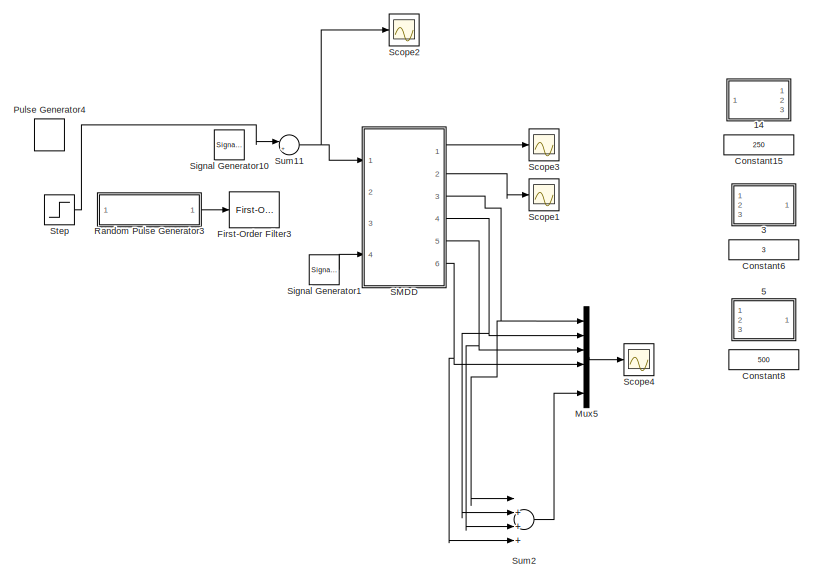
[diagram: root canvas - part 1/2, full width, top band]
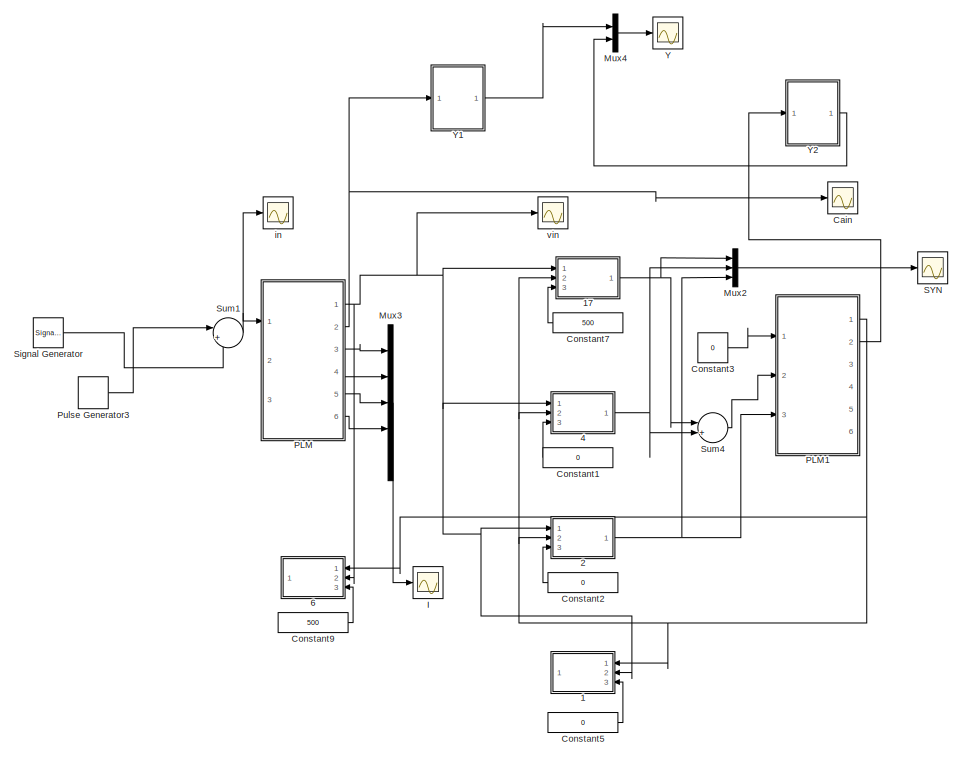
[diagram: root canvas - part 2/2, full width, bottom band]
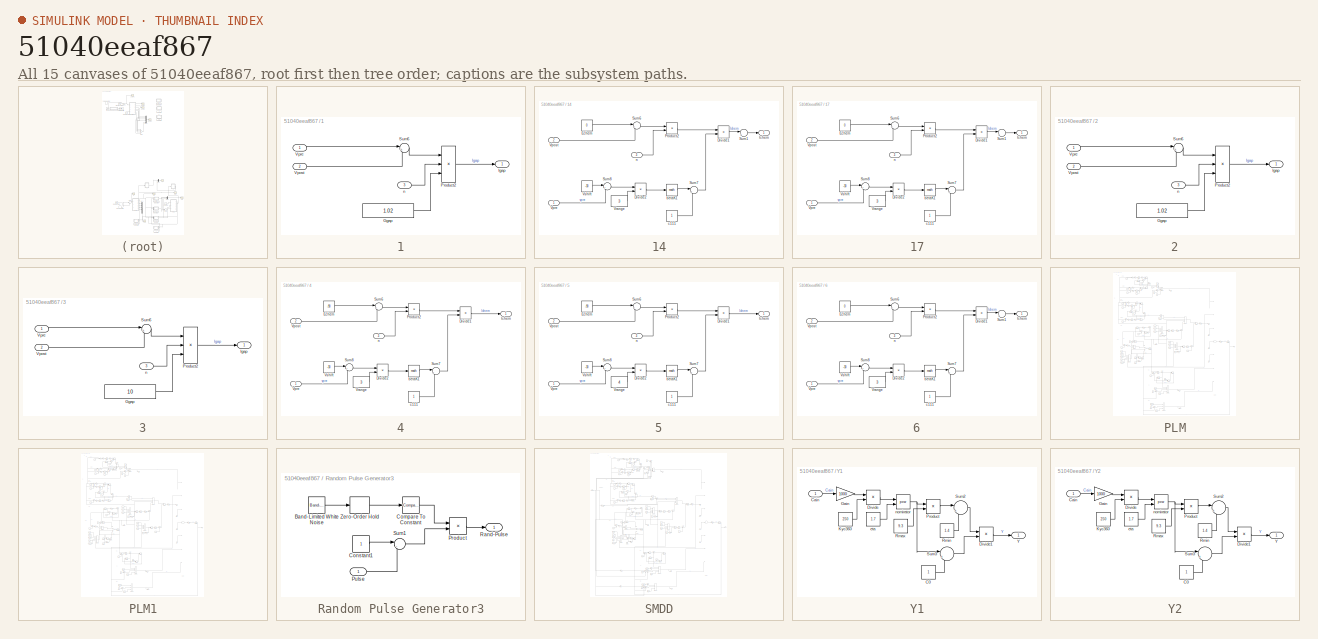
[diagram: thumbnail index - all 15 canvases of the model, root first then tree order]
MODEL slx_51040eeaf867
KIND model
CONFIG AbsTol = auto
CONFIG EnableMultiTasking = on
CONFIG FixedStep = auto
CONFIG MaxStep = auto
CONFIG MinStep = auto
CONFIG RelTol = 1e-3
CONFIG SampleTimeConstraint = Unconstrained
CONFIG Solver = VariableStepAuto
CONFIG SolverName = VariableStepAuto
CONFIG StartTime = 0.0
CONFIG StopTime = 15
BLOCK [SubSystem] 1
  Ports = [3, 1]
  RequestExecContextInheritance = off
  Variant = off
BLOCK [Constant] 1/Ggap
  Value = 1.02
BLOCK [Outport] 1/Igap
  IconDisplay = Port number
BLOCK [Product] 1/Product2
  InputSameDT = off
  Inputs = 3
  OutDataTypeStr = Inherit: Inherit via internal rule
  Ports = [3, 1]
  RndMeth = Floor
  SaturateOnIntegerOverflow = off
BLOCK [Sum] 1/Sum6
  IconShape = round
  InputSameDT = off
  Inputs = |+-
  OutDataTypeStr = Inherit: Inherit via internal rule
  Ports = [2, 1]
  SaturateOnIntegerOverflow = off
BLOCK [Inport] 1/Vpost
  IconDisplay = Port number
  Port = 2
BLOCK [Inport] 1/Vpre
  IconDisplay = Port number
BLOCK [Inport] 1/n
  IconDisplay = Port number
  Port = 3
BLOCK [SubSystem] 14
  Ports = [3, 1]
  RequestExecContextInheritance = off
  Variant = off
BLOCK [Product] 14/Divide1
  InputSameDT = off
  Inputs = */
  OutDataTypeStr = Inherit: Inherit via internal rule
  Ports = [2, 1]
  RndMeth = Floor
  SaturateOnIntegerOverflow = off
BLOCK [Product] 14/Divide2
  InputSameDT = off
  Inputs = */
  OutDataTypeStr = Inherit: Inherit via internal rule
  Ports = [2, 1]
  RndMeth = Floor
  SaturateOnIntegerOverflow = off
BLOCK [Constant] 14/Echem
  Value = 0
BLOCK [Outport] 14/Ichem
  IconDisplay = Port number
BLOCK [Product] 14/Product2
  InputSameDT = off
  OutDataTypeStr = Inherit: Inherit via internal rule
  Ports = [2, 1]
  RndMeth = Floor
  SaturateOnIntegerOverflow = off
BLOCK [Sum] 14/Sum1
  IconShape = round
  InputSameDT = off
  Inputs = |++
  OutDataTypeStr = Inherit: Inherit via internal rule
  Ports = [2, 1]
  SaturateOnIntegerOverflow = off
BLOCK [Sum] 14/Sum6
  IconShape = round
  InputSameDT = off
  Inputs = |+-
  OutDataTypeStr = Inherit: Inherit via internal rule
  Ports = [2, 1]
  SaturateOnIntegerOverflow = off
BLOCK [Sum] 14/Sum7
  IconShape = round
  InputSameDT = off
  Inputs = |++
  OutDataTypeStr = Inherit: Inherit via internal rule
  Ports = [2, 1]
  SaturateOnIntegerOverflow = off
BLOCK [Sum] 14/Sum8
  IconShape = round
  InputSameDT = off
  Inputs = |+-
  OutDataTypeStr = Inherit: Inherit via internal rule
  Ports = [2, 1]
  SaturateOnIntegerOverflow = off
BLOCK [Inport] 14/Vpost
  IconDisplay = Port number
  Port = 2
BLOCK [Inport] 14/Vpre
  IconDisplay = Port number
BLOCK [Constant] 14/Vrange
  Value = 3
BLOCK [Constant] 14/Vshift
  Value = -30
BLOCK [Math] 14/betaK1
  Ports = [1, 1]
BLOCK [Constant] 14/c111
BLOCK [Inport] 14/n
  IconDisplay = Port number
  Port = 3
BLOCK [SubSystem] 17
  Ports = [3, 1]
  RequestExecContextInheritance = off
  Variant = off
BLOCK [Product] 17/Divide1
  InputSameDT = off
  Inputs = */
  OutDataTypeStr = Inherit: Inherit via internal rule
  Ports = [2, 1]
  RndMeth = Floor
  SaturateOnIntegerOverflow = off
BLOCK [Product] 17/Divide2
  InputSameDT = off
  Inputs = */
  OutDataTypeStr = Inherit: Inherit via internal rule
  Ports = [2, 1]
  RndMeth = Floor
  SaturateOnIntegerOverflow = off
BLOCK [Constant] 17/Echem
  Value = 0
BLOCK [Outport] 17/Ichem
  IconDisplay = Port number
BLOCK [Product] 17/Product2
  InputSameDT = off
  OutDataTypeStr = Inherit: Inherit via internal rule
  Ports = [2, 1]
  RndMeth = Floor
  SaturateOnIntegerOverflow = off
BLOCK [Sum] 17/Sum1
  IconShape = round
  InputSameDT = off
  Inputs = |++
  OutDataTypeStr = Inherit: Inherit via internal rule
  Ports = [2, 1]
  SaturateOnIntegerOverflow = off
BLOCK [Sum] 17/Sum6
  IconShape = round
  InputSameDT = off
  Inputs = |+-
  OutDataTypeStr = Inherit: Inherit via internal rule
  Ports = [2, 1]
  SaturateOnIntegerOverflow = off
BLOCK [Sum] 17/Sum7
  IconShape = round
  InputSameDT = off
  Inputs = |++
  OutDataTypeStr = Inherit: Inherit via internal rule
  Ports = [2, 1]
  SaturateOnIntegerOverflow = off
BLOCK [Sum] 17/Sum8
  IconShape = round
  InputSameDT = off
  Inputs = |+-
  OutDataTypeStr = Inherit: Inherit via internal rule
  Ports = [2, 1]
  SaturateOnIntegerOverflow = off
BLOCK [Inport] 17/Vpost
  IconDisplay = Port number
  Port = 2
BLOCK [Inport] 17/Vpre
  IconDisplay = Port number
BLOCK [Constant] 17/Vrange
  Value = 3
BLOCK [Constant] 17/Vshift
  Value = -30
BLOCK [Math] 17/betaK1
  Ports = [1, 1]
BLOCK [Constant] 17/c111
BLOCK [Inport] 17/n
  IconDisplay = Port number
  Port = 3
BLOCK [SubSystem] 2
  Ports = [3, 1]
  RequestExecContextInheritance = off
  Variant = off
BLOCK [Constant] 2/Ggap
  Value = 1.02
BLOCK [Outport] 2/Igap
  IconDisplay = Port number
BLOCK [Product] 2/Product2
  InputSameDT = off
  Inputs = 3
  OutDataTypeStr = Inherit: Inherit via internal rule
  Ports = [3, 1]
  RndMeth = Floor
  SaturateOnIntegerOverflow = off
BLOCK [Sum] 2/Sum6
  IconShape = round
  InputSameDT = off
  Inputs = |+-
  OutDataTypeStr = Inherit: Inherit via internal rule
  Ports = [2, 1]
  SaturateOnIntegerOverflow = off
BLOCK [Inport] 2/Vpost
  IconDisplay = Port number
  Port = 2
BLOCK [Inport] 2/Vpre
  IconDisplay = Port number
BLOCK [Inport] 2/n
  IconDisplay = Port number
  Port = 3
BLOCK [SubSystem] 3
  Ports = [3, 1]
  RequestExecContextInheritance = off
  Variant = off
BLOCK [Constant] 3/Ggap
  Value = 10
BLOCK [Outport] 3/Igap
  IconDisplay = Port number
BLOCK [Product] 3/Product2
  InputSameDT = off
  Inputs = 3
  OutDataTypeStr = Inherit: Inherit via internal rule
  Ports = [3, 1]
  RndMeth = Floor
  SaturateOnIntegerOverflow = off
BLOCK [Sum] 3/Sum6
  IconShape = round
  InputSameDT = off
  Inputs = |+-
  OutDataTypeStr = Inherit: Inherit via internal rule
  Ports = [2, 1]
  SaturateOnIntegerOverflow = off
BLOCK [Inport] 3/Vpost
  IconDisplay = Port number
  Port = 2
BLOCK [Inport] 3/Vpre
  IconDisplay = Port number
BLOCK [Inport] 3/n
  IconDisplay = Port number
  Port = 3
BLOCK [SubSystem] 4
  Ports = [3, 1]
  RequestExecContextInheritance = off
  Variant = off
BLOCK [Product] 4/Divide1
  InputSameDT = off
  Inputs = */
  OutDataTypeStr = Inherit: Inherit via internal rule
  Ports = [2, 1]
  RndMeth = Floor
  SaturateOnIntegerOverflow = off
BLOCK [Product] 4/Divide2
  InputSameDT = off
  Inputs = */
  OutDataTypeStr = Inherit: Inherit via internal rule
  Ports = [2, 1]
  RndMeth = Floor
  SaturateOnIntegerOverflow = off
BLOCK [Constant] 4/Echem
  Value = -90
BLOCK [Outport] 4/Ichem
  IconDisplay = Port number
BLOCK [Product] 4/Product2
  InputSameDT = off
  OutDataTypeStr = Inherit: Inherit via internal rule
  Ports = [2, 1]
  RndMeth = Floor
  SaturateOnIntegerOverflow = off
BLOCK [Sum] 4/Sum6
  IconShape = round
  InputSameDT = off
  Inputs = |+-
  OutDataTypeStr = Inherit: Inherit via internal rule
  Ports = [2, 1]
  SaturateOnIntegerOverflow = off
BLOCK [Sum] 4/Sum7
  IconShape = round
  InputSameDT = off
  Inputs = |++
  OutDataTypeStr = Inherit: Inherit via internal rule
  Ports = [2, 1]
  SaturateOnIntegerOverflow = off
BLOCK [Sum] 4/Sum8
  IconShape = round
  InputSameDT = off
  Inputs = |+-
  OutDataTypeStr = Inherit: Inherit via internal rule
  Ports = [2, 1]
  SaturateOnIntegerOverflow = off
BLOCK [Inport] 4/Vpost
  IconDisplay = Port number
  Port = 2
BLOCK [Inport] 4/Vpre
  IconDisplay = Port number
BLOCK [Constant] 4/Vrange
  Value = 3
BLOCK [Constant] 4/Vshift
  Value = -30
BLOCK [Math] 4/betaK1
  Ports = [1, 1]
BLOCK [Constant] 4/c111
BLOCK [Inport] 4/n
  IconDisplay = Port number
  Port = 3
BLOCK [SubSystem] 5
  Ports = [3, 1]
  RequestExecContextInheritance = off
  Variant = off
BLOCK [Product] 5/Divide1
  InputSameDT = off
  Inputs = */
  OutDataTypeStr = Inherit: Inherit via internal rule
  Ports = [2, 1]
  RndMeth = Floor
  SaturateOnIntegerOverflow = off
BLOCK [Product] 5/Divide2
  InputSameDT = off
  Inputs = */
  OutDataTypeStr = Inherit: Inherit via internal rule
  Ports = [2, 1]
  RndMeth = Floor
  SaturateOnIntegerOverflow = off
BLOCK [Constant] 5/Echem
  Value = -90
BLOCK [Outport] 5/Ichem
  IconDisplay = Port number
BLOCK [Product] 5/Product2
  InputSameDT = off
  OutDataTypeStr = Inherit: Inherit via internal rule
  Ports = [2, 1]
  RndMeth = Floor
  SaturateOnIntegerOverflow = off
BLOCK [Sum] 5/Sum6
  IconShape = round
  InputSameDT = off
  Inputs = |+-
  OutDataTypeStr = Inherit: Inherit via internal rule
  Ports = [2, 1]
  SaturateOnIntegerOverflow = off
BLOCK [Sum] 5/Sum7
  IconShape = round
  InputSameDT = off
  Inputs = |++
  OutDataTypeStr = Inherit: Inherit via internal rule
  Ports = [2, 1]
  SaturateOnIntegerOverflow = off
BLOCK [Sum] 5/Sum8
  IconShape = round
  InputSameDT = off
  Inputs = |+-
  OutDataTypeStr = Inherit: Inherit via internal rule
  Ports = [2, 1]
  SaturateOnIntegerOverflow = off
BLOCK [Inport] 5/Vpost
  IconDisplay = Port number
  Port = 2
BLOCK [Inport] 5/Vpre
  IconDisplay = Port number
BLOCK [Constant] 5/Vrange
  Value = 4
BLOCK [Constant] 5/Vshift
  Value = -30
BLOCK [Math] 5/betaK1
  Ports = [1, 1]
BLOCK [Constant] 5/c111
BLOCK [Inport] 5/n
  IconDisplay = Port number
  Port = 3
BLOCK [SubSystem] 6
  Ports = [3, 1]
  RequestExecContextInheritance = off
  Variant = off
BLOCK [Product] 6/Divide1
  InputSameDT = off
  Inputs = */
  OutDataTypeStr = Inherit: Inherit via internal rule
  Ports = [2, 1]
  RndMeth = Floor
  SaturateOnIntegerOverflow = off
BLOCK [Product] 6/Divide2
  InputSameDT = off
  Inputs = */
  OutDataTypeStr = Inherit: Inherit via internal rule
  Ports = [2, 1]
  RndMeth = Floor
  SaturateOnIntegerOverflow = off
BLOCK [Constant] 6/Echem
  Value = 0
BLOCK [Outport] 6/Ichem
  IconDisplay = Port number
BLOCK [Product] 6/Product2
  InputSameDT = off
  OutDataTypeStr = Inherit: Inherit via internal rule
  Ports = [2, 1]
  RndMeth = Floor
  SaturateOnIntegerOverflow = off
BLOCK [Sum] 6/Sum1
  IconShape = round
  InputSameDT = off
  Inputs = |++
  OutDataTypeStr = Inherit: Inherit via internal rule
  Ports = [2, 1]
  SaturateOnIntegerOverflow = off
BLOCK [Sum] 6/Sum6
  IconShape = round
  InputSameDT = off
  Inputs = |+-
  OutDataTypeStr = Inherit: Inherit via internal rule
  Ports = [2, 1]
  SaturateOnIntegerOverflow = off
BLOCK [Sum] 6/Sum7
  IconShape = round
  InputSameDT = off
  Inputs = |++
  OutDataTypeStr = Inherit: Inherit via internal rule
  Ports = [2, 1]
  SaturateOnIntegerOverflow = off
BLOCK [Sum] 6/Sum8
  IconShape = round
  InputSameDT = off
  Inputs = |+-
  OutDataTypeStr = Inherit: Inherit via internal rule
  Ports = [2, 1]
  SaturateOnIntegerOverflow = off
BLOCK [Inport] 6/Vpost
  IconDisplay = Port number
  Port = 2
BLOCK [Inport] 6/Vpre
  IconDisplay = Port number
BLOCK [Constant] 6/Vrange
  Value = 3
BLOCK [Constant] 6/Vshift
  Value = -30
BLOCK [Math] 6/betaK1
  Ports = [1, 1]
BLOCK [Constant] 6/c111
BLOCK [Inport] 6/n
  IconDisplay = Port number
  Port = 3
BLOCK [Scope] Cain
  NumInputPorts = 1
  Ports = [1]
  ScopeSpecificationString = Simulink.scopes.TimeScopeBlockCfg('CurrentConfiguration', extmgr.ConfigurationSet(extmgr.Configuration('Core','General UI',true,'FigureColor',[1 1 1]),extmgr.Configuration('Core','Source UI',true),extmgr.Configuration('Sources','WiredSimulink',true,'DataLoggingVariableName','ScopeData4'),extmgr.Configuration('Visuals','Time Domain',true,'SerializedDisplays',{struct('MinYLimReal','-0.36281','MaxYLi...<+1660ch>
BLOCK [Constant] Constant1
  Value = 0
BLOCK [Constant] Constant15
  Value = 250
BLOCK [Constant] Constant2
  Value = 0
BLOCK [Constant] Constant3
  Value = 0
BLOCK [Constant] Constant5
  Value = 0
BLOCK [Constant] Constant6
  Value = 3
BLOCK [Constant] Constant7
  Value = 500
BLOCK [Constant] Constant8
  Value = 500
BLOCK [Constant] Constant9
  Value = 500
BLOCK [Reference] First-Order Filter3  REF=powerlib_meascontrol/Filters/First-Order
Filter
  Ports = [1, 1]
  SourceBlock = powerlib_meascontrol/Filters/First-Order\nFilter
  SourceType = First-Order Filter
BLOCK [Scope] I
  NumInputPorts = 1
  Ports = [1]
  ScopeSpecificationString = Simulink.scopes.TimeScopeBlockCfg('CurrentConfiguration', extmgr.ConfigurationSet(extmgr.Configuration('Core','General UI',true),extmgr.Configuration('Core','Source UI',true),extmgr.Configuration('Sources','WiredSimulink',true,'DataLoggingVariableName','ScopeData1'),extmgr.Configuration('Visuals','Time Domain',true,'SerializedDisplays',{struct('MinYLimReal','-7667.27714','MaxYLimReal','14009.21614...<+1832ch>
BLOCK [Mux] Mux2
  DisplayOption = bar
  Inputs = 3
  Ports = [3, 1]
BLOCK [Mux] Mux3
  DisplayOption = bar
  Inputs = 5
  Ports = [5, 1]
BLOCK [Mux] Mux4
  DisplayOption = bar
  Inputs = 2
  Ports = [2, 1]
BLOCK [Mux] Mux5
  DisplayOption = bar
  Inputs = 6
  Ports = [6, 1]
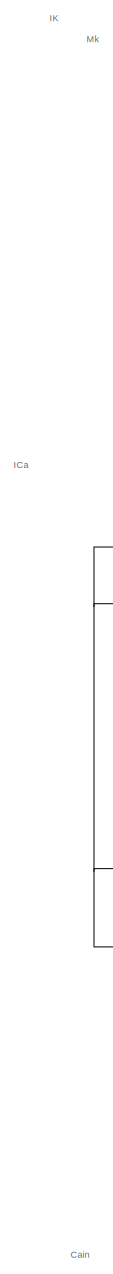
[diagram: PLM - part 1/8, top left region]
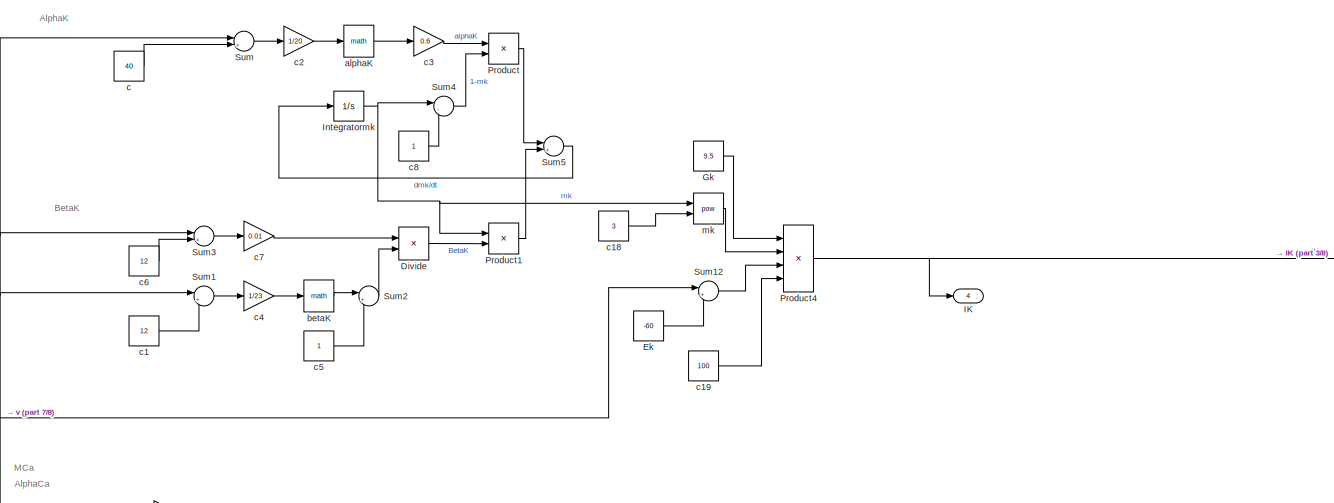
[diagram: PLM - part 2/8, top center region]
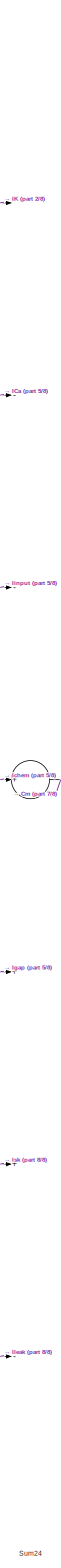
[diagram: PLM - part 3/8, right side, full height]
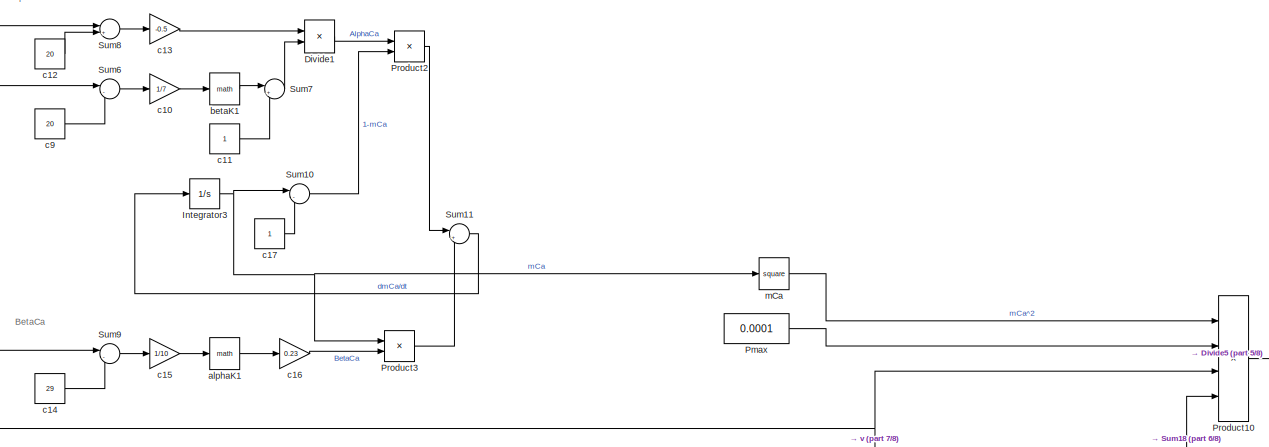
[diagram: PLM - part 4/8, top left region]
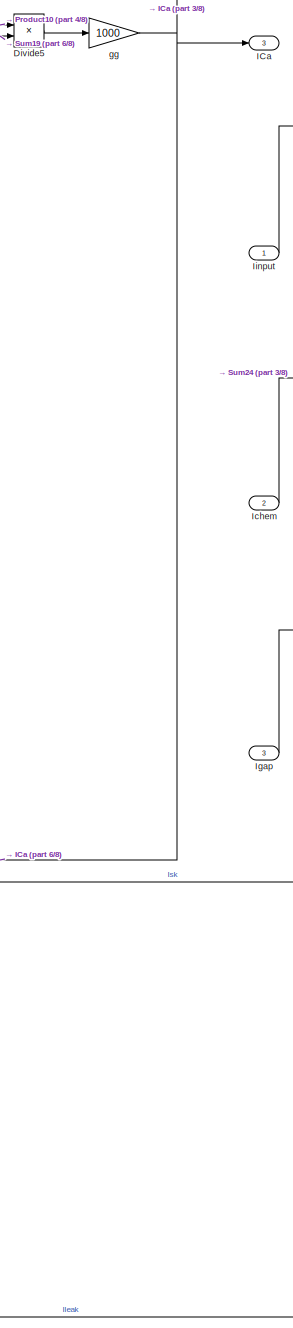
[diagram: PLM - part 5/8, middle right region]
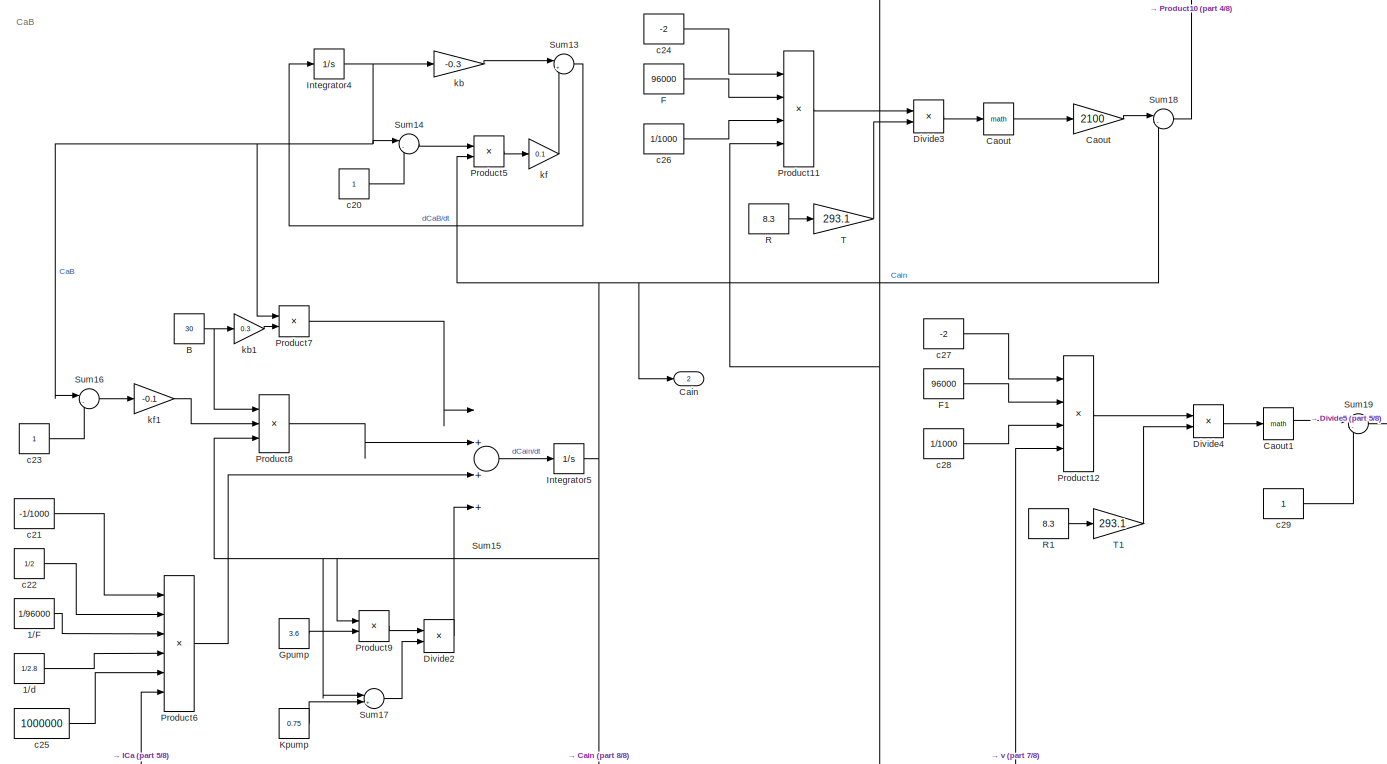
[diagram: PLM - part 6/8, central region]
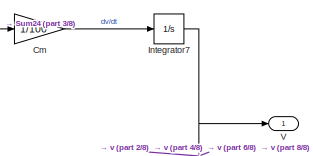
[diagram: PLM - part 7/8, middle right region]
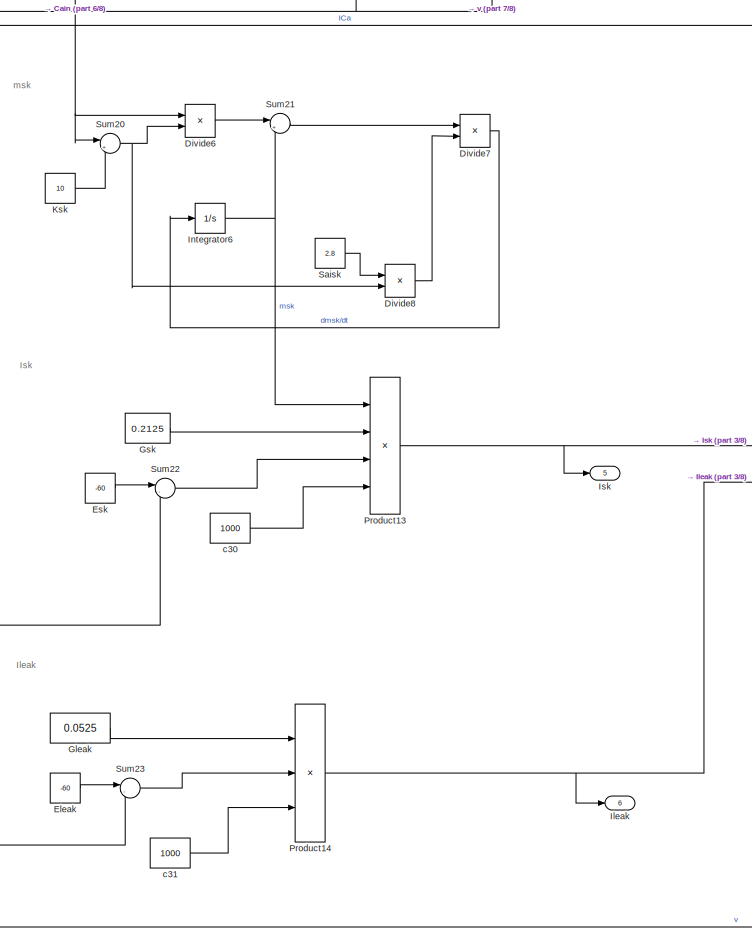
[diagram: PLM - part 8/8, bottom center region]
BLOCK [SubSystem] PLM
  Ports = [3, 6]
  RequestExecContextInheritance = off
  Variant = off
BLOCK [Constant] PLM/1//F
  Value = 1/96000
BLOCK [Constant] PLM/1//d
  Value = 1/2.8
BLOCK [Constant] PLM/B
  Value = 30
BLOCK [Outport] PLM/Cain 
  IconDisplay = Port number
  Port = 2
BLOCK [Math] PLM/Caout
  Ports = [1, 1]
BLOCK [Gain] PLM/Caout 
  Gain = 2100
  OutDataTypeStr = Inherit: Inherit via internal rule
  ParamDataTypeStr = Inherit: Inherit via internal rule
  SaturateOnIntegerOverflow = off
BLOCK [Math] PLM/Caout1
  Ports = [1, 1]
BLOCK [Gain] PLM/Cm 
  Gain = 1/100
  OutDataTypeStr = Inherit: Inherit via internal rule
  ParamDataTypeStr = Inherit: Inherit via internal rule
  SaturateOnIntegerOverflow = off
BLOCK [Product] PLM/Divide
  InputSameDT = off
  Inputs = */
  OutDataTypeStr = Inherit: Inherit via internal rule
  Ports = [2, 1]
  RndMeth = Floor
  SaturateOnIntegerOverflow = off
BLOCK [Product] PLM/Divide1
  InputSameDT = off
  Inputs = */
  OutDataTypeStr = Inherit: Inherit via internal rule
  Ports = [2, 1]
  RndMeth = Floor
  SaturateOnIntegerOverflow = off
BLOCK [Product] PLM/Divide2
  InputSameDT = off
  Inputs = */
  OutDataTypeStr = Inherit: Inherit via internal rule
  Ports = [2, 1]
  RndMeth = Floor
  SaturateOnIntegerOverflow = off
BLOCK [Product] PLM/Divide3
  InputSameDT = off
  Inputs = */
  OutDataTypeStr = Inherit: Inherit via internal rule
  Ports = [2, 1]
  RndMeth = Floor
  SaturateOnIntegerOverflow = off
BLOCK [Product] PLM/Divide4
  InputSameDT = off
  Inputs = */
  OutDataTypeStr = Inherit: Inherit via internal rule
  Ports = [2, 1]
  RndMeth = Floor
  SaturateOnIntegerOverflow = off
BLOCK [Product] PLM/Divide5
  InputSameDT = off
  Inputs = */
  OutDataTypeStr = Inherit: Inherit via internal rule
  Ports = [2, 1]
  RndMeth = Floor
  SaturateOnIntegerOverflow = off
BLOCK [Product] PLM/Divide6
  InputSameDT = off
  Inputs = */
  OutDataTypeStr = Inherit: Inherit via internal rule
  Ports = [2, 1]
  RndMeth = Floor
  SaturateOnIntegerOverflow = off
BLOCK [Product] PLM/Divide7
  InputSameDT = off
  Inputs = */
  OutDataTypeStr = Inherit: Inherit via internal rule
  Ports = [2, 1]
  RndMeth = Floor
  SaturateOnIntegerOverflow = off
BLOCK [Product] PLM/Divide8
  InputSameDT = off
  Inputs = */
  OutDataTypeStr = Inherit: Inherit via internal rule
  Ports = [2, 1]
  RndMeth = Floor
  SaturateOnIntegerOverflow = off
BLOCK [Constant] PLM/Ek 
  Value = -60
BLOCK [Constant] PLM/Eleak
  Value = -60
BLOCK [Constant] PLM/Esk
  Value = -60
BLOCK [Constant] PLM/F
  Value = 96000
BLOCK [Constant] PLM/F1
  Value = 96000
BLOCK [Constant] PLM/Gk 
  Value = 9.5
BLOCK [Constant] PLM/Gleak
  Value = 0.0525
BLOCK [Constant] PLM/Gpump
  Value = 3.6
BLOCK [Constant] PLM/Gsk
  Value = 0.2125
BLOCK [Outport] PLM/ICa
  IconDisplay = Port number
  Port = 3
BLOCK [Outport] PLM/IK
  IconDisplay = Port number
  Port = 4
BLOCK [Inport] PLM/Ichem
  IconDisplay = Port number
  Port = 2
BLOCK [Inport] PLM/Igap
  IconDisplay = Port number
  Port = 3
BLOCK [Inport] PLM/Iinput
  IconDisplay = Port number
BLOCK [Outport] PLM/Ileak
  IconDisplay = Port number
  Port = 6
BLOCK [Integrator] PLM/Integrator3
  InitialCondition = 0.001
  Ports = [1, 1]
BLOCK [Integrator] PLM/Integrator4
  Ports = [1, 1]
BLOCK [Integrator] PLM/Integrator5
  Ports = [1, 1]
BLOCK [Integrator] PLM/Integrator6
  InitialCondition = 1
  Ports = [1, 1]
BLOCK [Integrator] PLM/Integrator7
  InitialCondition = -60
  Ports = [1, 1]
BLOCK [Integrator] PLM/Integratormk
  Ports = [1, 1]
BLOCK [Outport] PLM/Isk
  IconDisplay = Port number
  Port = 5
BLOCK [Constant] PLM/Kpump
  Value = 0.75
BLOCK [Constant] PLM/Ksk
  Value = 10
BLOCK [Constant] PLM/Pmax
  Value = 0.0001
BLOCK [Product] PLM/Product
  InputSameDT = off
  OutDataTypeStr = Inherit: Inherit via internal rule
  Ports = [2, 1]
  RndMeth = Floor
  SaturateOnIntegerOverflow = off
BLOCK [Product] PLM/Product1
  InputSameDT = off
  OutDataTypeStr = Inherit: Inherit via internal rule
  Ports = [2, 1]
  RndMeth = Floor
  SaturateOnIntegerOverflow = off
BLOCK [Product] PLM/Product10
  InputSameDT = off
  Inputs = 4
  OutDataTypeStr = Inherit: Inherit via internal rule
  Ports = [4, 1]
  RndMeth = Floor
  SaturateOnIntegerOverflow = off
BLOCK [Product] PLM/Product11
  InputSameDT = off
  Inputs = 4
  OutDataTypeStr = Inherit: Inherit via internal rule
  Ports = [4, 1]
  RndMeth = Floor
  SaturateOnIntegerOverflow = off
BLOCK [Product] PLM/Product12
  InputSameDT = off
  Inputs = 4
  OutDataTypeStr = Inherit: Inherit via internal rule
  Ports = [4, 1]
  RndMeth = Floor
  SaturateOnIntegerOverflow = off
BLOCK [Product] PLM/Product13
  InputSameDT = off
  Inputs = 4
  OutDataTypeStr = Inherit: Inherit via internal rule
  Ports = [4, 1]
  RndMeth = Floor
  SaturateOnIntegerOverflow = off
BLOCK [Product] PLM/Product14
  InputSameDT = off
  Inputs = 3
  OutDataTypeStr = Inherit: Inherit via internal rule
  Ports = [3, 1]
  RndMeth = Floor
  SaturateOnIntegerOverflow = off
BLOCK [Product] PLM/Product2
  InputSameDT = off
  OutDataTypeStr = Inherit: Inherit via internal rule
  Ports = [2, 1]
  RndMeth = Floor
  SaturateOnIntegerOverflow = off
BLOCK [Product] PLM/Product3
  InputSameDT = off
  OutDataTypeStr = Inherit: Inherit via internal rule
  Ports = [2, 1]
  RndMeth = Floor
  SaturateOnIntegerOverflow = off
BLOCK [Product] PLM/Product4
  InputSameDT = off
  Inputs = 4
  OutDataTypeStr = Inherit: Inherit via internal rule
  Ports = [4, 1]
  RndMeth = Floor
  SaturateOnIntegerOverflow = off
BLOCK [Product] PLM/Product5
  InputSameDT = off
  OutDataTypeStr = Inherit: Inherit via internal rule
  Ports = [2, 1]
  RndMeth = Floor
  SaturateOnIntegerOverflow = off
BLOCK [Product] PLM/Product6
  InputSameDT = off
  Inputs = 6
  OutDataTypeStr = Inherit: Inherit via internal rule
  Ports = [6, 1]
  RndMeth = Floor
  SaturateOnIntegerOverflow = off
BLOCK [Product] PLM/Product7
  InputSameDT = off
  OutDataTypeStr = Inherit: Inherit via internal rule
  Ports = [2, 1]
  RndMeth = Floor
  SaturateOnIntegerOverflow = off
BLOCK [Product] PLM/Product8
  InputSameDT = off
  Inputs = 3
  OutDataTypeStr = Inherit: Inherit via internal rule
  Ports = [3, 1]
  RndMeth = Floor
  SaturateOnIntegerOverflow = off
BLOCK [Product] PLM/Product9
  InputSameDT = off
  OutDataTypeStr = Inherit: Inherit via internal rule
  Ports = [2, 1]
  RndMeth = Floor
  SaturateOnIntegerOverflow = off
BLOCK [Constant] PLM/R
  Value = 8.3
BLOCK [Constant] PLM/R1
  Value = 8.3
BLOCK [Constant] PLM/Saisk
  Value = 2.8
BLOCK [Sum] PLM/Sum
  IconShape = round
  InputSameDT = off
  Inputs = |++
  OutDataTypeStr = Inherit: Inherit via internal rule
  Ports = [2, 1]
  SaturateOnIntegerOverflow = off
BLOCK [Sum] PLM/Sum1
  IconShape = round
  InputSameDT = off
  Inputs = |++
  OutDataTypeStr = Inherit: Inherit via internal rule
  Ports = [2, 1]
  SaturateOnIntegerOverflow = off
BLOCK [Sum] PLM/Sum10
  IconShape = round
  InputSameDT = off
  Inputs = |-+
  OutDataTypeStr = Inherit: Inherit via internal rule
  Ports = [2, 1]
  SaturateOnIntegerOverflow = off
BLOCK [Sum] PLM/Sum11
  IconShape = round
  InputSameDT = off
  Inputs = |+-
  OutDataTypeStr = Inherit: Inherit via internal rule
  Ports = [2, 1]
  SaturateOnIntegerOverflow = off
BLOCK [Sum] PLM/Sum12
  IconShape = round
  InputSameDT = off
  Inputs = |+-
  OutDataTypeStr = Inherit: Inherit via internal rule
  Ports = [2, 1]
  SaturateOnIntegerOverflow = off
BLOCK [Sum] PLM/Sum13
  IconShape = round
  InputSameDT = off
  Inputs = |++
  OutDataTypeStr = Inherit: Inherit via internal rule
  Ports = [2, 1]
  SaturateOnIntegerOverflow = off
BLOCK [Sum] PLM/Sum14
  IconShape = round
  InputSameDT = off
  Inputs = |-+
  OutDataTypeStr = Inherit: Inherit via internal rule
  Ports = [2, 1]
  SaturateOnIntegerOverflow = off
BLOCK [Sum] PLM/Sum15
  InputSameDT = off
  Inputs = |+++-
  OutDataTypeStr = Inherit: Inherit via internal rule
  Ports = [4, 1]
  SaturateOnIntegerOverflow = off
BLOCK [Sum] PLM/Sum16
  IconShape = round
  InputSameDT = off
  Inputs = |-+
  OutDataTypeStr = Inherit: Inherit via internal rule
  Ports = [2, 1]
  SaturateOnIntegerOverflow = off
BLOCK [Sum] PLM/Sum17
  IconShape = round
  InputSameDT = off
  Inputs = |++
  OutDataTypeStr = Inherit: Inherit via internal rule
  Ports = [2, 1]
  SaturateOnIntegerOverflow = off
BLOCK [Sum] PLM/Sum18
  IconShape = round
  InputSameDT = off
  Inputs = |-+
  OutDataTypeStr = Inherit: Inherit via internal rule
  Ports = [2, 1]
  SaturateOnIntegerOverflow = off
BLOCK [Sum] PLM/Sum19
  IconShape = round
  InputSameDT = off
  Inputs = |-+
  OutDataTypeStr = Inherit: Inherit via internal rule
  Ports = [2, 1]
  SaturateOnIntegerOverflow = off
BLOCK [Sum] PLM/Sum2
  IconShape = round
  InputSameDT = off
  Inputs = |+-
  OutDataTypeStr = Inherit: Inherit via internal rule
  Ports = [2, 1]
  SaturateOnIntegerOverflow = off
BLOCK [Sum] PLM/Sum20
  IconShape = round
  InputSameDT = off
  Inputs = |++
  OutDataTypeStr = Inherit: Inherit via internal rule
  Ports = [2, 1]
  SaturateOnIntegerOverflow = off
BLOCK [Sum] PLM/Sum21
  IconShape = round
  InputSameDT = off
  Inputs = |+-
  OutDataTypeStr = Inherit: Inherit via internal rule
  Ports = [2, 1]
  SaturateOnIntegerOverflow = off
BLOCK [Sum] PLM/Sum22
  IconShape = round
  InputSameDT = off
  Inputs = |-+
  OutDataTypeStr = Inherit: Inherit via internal rule
  Ports = [2, 1]
  SaturateOnIntegerOverflow = off
BLOCK [Sum] PLM/Sum23
  IconShape = round
  InputSameDT = off
  Inputs = |-+
  OutDataTypeStr = Inherit: Inherit via internal rule
  Ports = [2, 1]
  SaturateOnIntegerOverflow = off
BLOCK [Sum] PLM/Sum24
  InputSameDT = off
  Inputs = |--+++--
  OutDataTypeStr = Inherit: Inherit via internal rule
  Ports = [7, 1]
  SaturateOnIntegerOverflow = off
BLOCK [Sum] PLM/Sum3
  IconShape = round
  InputSameDT = off
  Inputs = |++
  OutDataTypeStr = Inherit: Inherit via internal rule
  Ports = [2, 1]
  SaturateOnIntegerOverflow = off
BLOCK [Sum] PLM/Sum4
  IconShape = round
  InputSameDT = off
  Inputs = |-+
  OutDataTypeStr = Inherit: Inherit via internal rule
  Ports = [2, 1]
  SaturateOnIntegerOverflow = off
BLOCK [Sum] PLM/Sum5
  IconShape = round
  InputSameDT = off
  Inputs = |+-
  OutDataTypeStr = Inherit: Inherit via internal rule
  Ports = [2, 1]
  SaturateOnIntegerOverflow = off
BLOCK [Sum] PLM/Sum6
  IconShape = round
  InputSameDT = off
  Inputs = |--
  OutDataTypeStr = Inherit: Inherit via internal rule
  Ports = [2, 1]
  SaturateOnIntegerOverflow = off
BLOCK [Sum] PLM/Sum7
  IconShape = round
  InputSameDT = off
  Inputs = |+-
  OutDataTypeStr = Inherit: Inherit via internal rule
  Ports = [2, 1]
  SaturateOnIntegerOverflow = off
BLOCK [Sum] PLM/Sum8
  IconShape = round
  InputSameDT = off
  Inputs = |++
  OutDataTypeStr = Inherit: Inherit via internal rule
  Ports = [2, 1]
  SaturateOnIntegerOverflow = off
BLOCK [Sum] PLM/Sum9
  IconShape = round
  InputSameDT = off
  Inputs = |--
  OutDataTypeStr = Inherit: Inherit via internal rule
  Ports = [2, 1]
  SaturateOnIntegerOverflow = off
BLOCK [Gain] PLM/T
  Gain = 293.1
  OutDataTypeStr = Inherit: Inherit via internal rule
  ParamDataTypeStr = Inherit: Inherit via internal rule
  SaturateOnIntegerOverflow = off
BLOCK [Gain] PLM/T1
  Gain = 293.1
  OutDataTypeStr = Inherit: Inherit via internal rule
  ParamDataTypeStr = Inherit: Inherit via internal rule
  SaturateOnIntegerOverflow = off
BLOCK [Outport] PLM/V
  IconDisplay = Port number
BLOCK [Math] PLM/alphaK
  Ports = [1, 1]
BLOCK [Math] PLM/alphaK1
  Ports = [1, 1]
BLOCK [Math] PLM/betaK
  Ports = [1, 1]
BLOCK [Math] PLM/betaK1
  Ports = [1, 1]
BLOCK [Constant] PLM/c
  Value = 40
BLOCK [Constant] PLM/c1
  Value = 12
BLOCK [Gain] PLM/c10
  Gain = 1/7
  OutDataTypeStr = Inherit: Inherit via internal rule
  ParamDataTypeStr = Inherit: Inherit via internal rule
  SaturateOnIntegerOverflow = off
BLOCK [Constant] PLM/c11
BLOCK [Constant] PLM/c12
  Value = 20
BLOCK [Gain] PLM/c13
  Gain = -0.5
  OutDataTypeStr = Inherit: Inherit via internal rule
  ParamDataTypeStr = Inherit: Inherit via internal rule
  SaturateOnIntegerOverflow = off
BLOCK [Constant] PLM/c14
  Value = 29
BLOCK [Gain] PLM/c15
  Gain = 1/10
  OutDataTypeStr = Inherit: Inherit via internal rule
  ParamDataTypeStr = Inherit: Inherit via internal rule
  SaturateOnIntegerOverflow = off
BLOCK [Gain] PLM/c16
  Gain = 0.23
  OutDataTypeStr = Inherit: Inherit via internal rule
  ParamDataTypeStr = Inherit: Inherit via internal rule
  SaturateOnIntegerOverflow = off
BLOCK [Constant] PLM/c17
BLOCK [Constant] PLM/c18
  Value = 3
BLOCK [Constant] PLM/c19
  Value = 100
BLOCK [Gain] PLM/c2
  Gain = 1/20
  OutDataTypeStr = Inherit: Inherit via internal rule
  ParamDataTypeStr = Inherit: Inherit via internal rule
  SaturateOnIntegerOverflow = off
BLOCK [Constant] PLM/c20
BLOCK [Constant] PLM/c21
  Value = -1/1000
BLOCK [Constant] PLM/c22
  Value = 1/2
BLOCK [Constant] PLM/c23
BLOCK [Constant] PLM/c24
  Value = -2
BLOCK [Constant] PLM/c25
  Value = 1000000
BLOCK [Constant] PLM/c26
  Value = 1/1000
BLOCK [Constant] PLM/c27
  Value = -2
BLOCK [Constant] PLM/c28
  Value = 1/1000
BLOCK [Constant] PLM/c29
BLOCK [Gain] PLM/c3
  Gain = 0.6
  OutDataTypeStr = Inherit: Inherit via internal rule
  ParamDataTypeStr = Inherit: Inherit via internal rule
  SaturateOnIntegerOverflow = off
BLOCK [Constant] PLM/c30
  Value = 1000
BLOCK [Constant] PLM/c31
  Value = 1000
BLOCK [Gain] PLM/c4
  Gain = 1/23
  OutDataTypeStr = Inherit: Inherit via internal rule
  ParamDataTypeStr = Inherit: Inherit via internal rule
  SaturateOnIntegerOverflow = off
BLOCK [Constant] PLM/c5
BLOCK [Constant] PLM/c6
  Value = 12
BLOCK [Gain] PLM/c7
  Gain = 0.01
  OutDataTypeStr = Inherit: Inherit via internal rule
  ParamDataTypeStr = Inherit: Inherit via internal rule
  SaturateOnIntegerOverflow = off
BLOCK [Constant] PLM/c8
BLOCK [Constant] PLM/c9
  Value = 20
BLOCK [Gain] PLM/gg 
  Gain = 1000
  OutDataTypeStr = Inherit: Inherit via internal rule
  ParamDataTypeStr = Inherit: Inherit via internal rule
  SaturateOnIntegerOverflow = off
BLOCK [Gain] PLM/kb
  Gain = -0.3
  OutDataTypeStr = Inherit: Inherit via internal rule
  ParamDataTypeStr = Inherit: Inherit via internal rule
  SaturateOnIntegerOverflow = off
BLOCK [Gain] PLM/kb1
  Gain = 0.3
  OutDataTypeStr = Inherit: Inherit via internal rule
  ParamDataTypeStr = Inherit: Inherit via internal rule
  SaturateOnIntegerOverflow = off
BLOCK [Gain] PLM/kf
  Gain = 0.1
  OutDataTypeStr = Inherit: Inherit via internal rule
  ParamDataTypeStr = Inherit: Inherit via internal rule
  SaturateOnIntegerOverflow = off
BLOCK [Gain] PLM/kf1
  Gain = -0.1
  OutDataTypeStr = Inherit: Inherit via internal rule
  ParamDataTypeStr = Inherit: Inherit via internal rule
  SaturateOnIntegerOverflow = off
BLOCK [Math] PLM/mCa
  Operator = square
  Ports = [1, 1]
BLOCK [Math] PLM/mk
  Operator = pow
  Ports = [2, 1]
BLOCK [SubSystem] PLM1
  Ports = [3, 6]
  RequestExecContextInheritance = off
  Variant = off
BLOCK [Constant] PLM1/1//F
  Value = 1/96000
BLOCK [Constant] PLM1/1//d
  Value = 1/2.8
BLOCK [Constant] PLM1/B
  Value = 30
BLOCK [Outport] PLM1/Cain 
  IconDisplay = Port number
  Port = 2
BLOCK [Math] PLM1/Caout
  Ports = [1, 1]
BLOCK [Gain] PLM1/Caout 
  Gain = 2100
  OutDataTypeStr = Inherit: Inherit via internal rule
  ParamDataTypeStr = Inherit: Inherit via internal rule
  SaturateOnIntegerOverflow = off
BLOCK [Math] PLM1/Caout1
  Ports = [1, 1]
BLOCK [Gain] PLM1/Cm 
  Gain = 1/15
  OutDataTypeStr = Inherit: Inherit via internal rule
  ParamDataTypeStr = Inherit: Inherit via internal rule
  SaturateOnIntegerOverflow = off
BLOCK [Product] PLM1/Divide
  InputSameDT = off
  Inputs = */
  OutDataTypeStr = Inherit: Inherit via internal rule
  Ports = [2, 1]
  RndMeth = Floor
  SaturateOnIntegerOverflow = off
BLOCK [Product] PLM1/Divide1
  InputSameDT = off
  Inputs = */
  OutDataTypeStr = Inherit: Inherit via internal rule
  Ports = [2, 1]
  RndMeth = Floor
  SaturateOnIntegerOverflow = off
BLOCK [Product] PLM1/Divide2
  InputSameDT = off
  Inputs = */
  OutDataTypeStr = Inherit: Inherit via internal rule
  Ports = [2, 1]
  RndMeth = Floor
  SaturateOnIntegerOverflow = off
BLOCK [Product] PLM1/Divide3
  InputSameDT = off
  Inputs = */
  OutDataTypeStr = Inherit: Inherit via internal rule
  Ports = [2, 1]
  RndMeth = Floor
  SaturateOnIntegerOverflow = off
BLOCK [Product] PLM1/Divide4
  InputSameDT = off
  Inputs = */
  OutDataTypeStr = Inherit: Inherit via internal rule
  Ports = [2, 1]
  RndMeth = Floor
  SaturateOnIntegerOverflow = off
BLOCK [Product] PLM1/Divide5
  InputSameDT = off
  Inputs = */
  OutDataTypeStr = Inherit: Inherit via internal rule
  Ports = [2, 1]
  RndMeth = Floor
  SaturateOnIntegerOverflow = off
BLOCK [Product] PLM1/Divide6
  InputSameDT = off
  Inputs = */
  OutDataTypeStr = Inherit: Inherit via internal rule
  Ports = [2, 1]
  RndMeth = Floor
  SaturateOnIntegerOverflow = off
BLOCK [Product] PLM1/Divide7
  InputSameDT = off
  Inputs = */
  OutDataTypeStr = Inherit: Inherit via internal rule
  Ports = [2, 1]
  RndMeth = Floor
  SaturateOnIntegerOverflow = off
BLOCK [Product] PLM1/Divide8
  InputSameDT = off
  Inputs = */
  OutDataTypeStr = Inherit: Inherit via internal rule
  Ports = [2, 1]
  RndMeth = Floor
  SaturateOnIntegerOverflow = off
BLOCK [Constant] PLM1/Ek 
  Value = -60
BLOCK [Constant] PLM1/Eleak
  Value = -60
BLOCK [Constant] PLM1/Esk
  Value = -60
BLOCK [Constant] PLM1/F
  Value = 96000
BLOCK [Constant] PLM1/F1
  Value = 96000
BLOCK [Constant] PLM1/Gk 
  Value = 9.5
BLOCK [Constant] PLM1/Gleak
  Value = 0.0525
BLOCK [Constant] PLM1/Gpump
  Value = 3.6
BLOCK [Constant] PLM1/Gsk
  Value = 0.2125
BLOCK [Outport] PLM1/ICa
  IconDisplay = Port number
  Port = 3
BLOCK [Outport] PLM1/IK
  IconDisplay = Port number
  Port = 4
BLOCK [Inport] PLM1/Ichem
  IconDisplay = Port number
  Port = 2
BLOCK [Inport] PLM1/Igap
  IconDisplay = Port number
  Port = 3
BLOCK [Inport] PLM1/Iinput
  IconDisplay = Port number
BLOCK [Outport] PLM1/Ileak
  IconDisplay = Port number
  Port = 6
BLOCK [Integrator] PLM1/Integrator2
  Ports = [1, 1]
BLOCK [Integrator] PLM1/Integrator3
  InitialCondition = 0.001
  Ports = [1, 1]
BLOCK [Integrator] PLM1/Integrator4
  Ports = [1, 1]
BLOCK [Integrator] PLM1/Integrator5
  Ports = [1, 1]
BLOCK [Integrator] PLM1/Integrator6
  InitialCondition = 1
  Ports = [1, 1]
BLOCK [Integrator] PLM1/Integrator7
  InitialCondition = -60
  Ports = [1, 1]
BLOCK [Outport] PLM1/Isk
  IconDisplay = Port number
  Port = 5
BLOCK [Constant] PLM1/Kpump
  Value = 0.75
BLOCK [Constant] PLM1/Ksk
  Value = 10
BLOCK [Constant] PLM1/Pmax
  Value = 0.0001
BLOCK [Product] PLM1/Product
  InputSameDT = off
  OutDataTypeStr = Inherit: Inherit via internal rule
  Ports = [2, 1]
  RndMeth = Floor
  SaturateOnIntegerOverflow = off
BLOCK [Product] PLM1/Product1
  InputSameDT = off
  OutDataTypeStr = Inherit: Inherit via internal rule
  Ports = [2, 1]
  RndMeth = Floor
  SaturateOnIntegerOverflow = off
BLOCK [Product] PLM1/Product10
  InputSameDT = off
  Inputs = 4
  OutDataTypeStr = Inherit: Inherit via internal rule
  Ports = [4, 1]
  RndMeth = Floor
  SaturateOnIntegerOverflow = off
BLOCK [Product] PLM1/Product11
  InputSameDT = off
  Inputs = 4
  OutDataTypeStr = Inherit: Inherit via internal rule
  Ports = [4, 1]
  RndMeth = Floor
  SaturateOnIntegerOverflow = off
BLOCK [Product] PLM1/Product12
  InputSameDT = off
  Inputs = 4
  OutDataTypeStr = Inherit: Inherit via internal rule
  Ports = [4, 1]
  RndMeth = Floor
  SaturateOnIntegerOverflow = off
BLOCK [Product] PLM1/Product13
  InputSameDT = off
  Inputs = 4
  OutDataTypeStr = Inherit: Inherit via internal rule
  Ports = [4, 1]
  RndMeth = Floor
  SaturateOnIntegerOverflow = off
BLOCK [Product] PLM1/Product14
  InputSameDT = off
  Inputs = 3
  OutDataTypeStr = Inherit: Inherit via internal rule
  Ports = [3, 1]
  RndMeth = Floor
  SaturateOnIntegerOverflow = off
BLOCK [Product] PLM1/Product2
  InputSameDT = off
  OutDataTypeStr = Inherit: Inherit via internal rule
  Ports = [2, 1]
  RndMeth = Floor
  SaturateOnIntegerOverflow = off
BLOCK [Product] PLM1/Product3
  InputSameDT = off
  OutDataTypeStr = Inherit: Inherit via internal rule
  Ports = [2, 1]
  RndMeth = Floor
  SaturateOnIntegerOverflow = off
BLOCK [Product] PLM1/Product4
  InputSameDT = off
  Inputs = 4
  OutDataTypeStr = Inherit: Inherit via internal rule
  Ports = [4, 1]
  RndMeth = Floor
  SaturateOnIntegerOverflow = off
BLOCK [Product] PLM1/Product5
  InputSameDT = off
  OutDataTypeStr = Inherit: Inherit via internal rule
  Ports = [2, 1]
  RndMeth = Floor
  SaturateOnIntegerOverflow = off
BLOCK [Product] PLM1/Product6
  InputSameDT = off
  Inputs = 6
  OutDataTypeStr = Inherit: Inherit via internal rule
  Ports = [6, 1]
  RndMeth = Floor
  SaturateOnIntegerOverflow = off
BLOCK [Product] PLM1/Product7
  InputSameDT = off
  OutDataTypeStr = Inherit: Inherit via internal rule
  Ports = [2, 1]
  RndMeth = Floor
  SaturateOnIntegerOverflow = off
BLOCK [Product] PLM1/Product8
  InputSameDT = off
  Inputs = 3
  OutDataTypeStr = Inherit: Inherit via internal rule
  Ports = [3, 1]
  RndMeth = Floor
  SaturateOnIntegerOverflow = off
BLOCK [Product] PLM1/Product9
  InputSameDT = off
  OutDataTypeStr = Inherit: Inherit via internal rule
  Ports = [2, 1]
  RndMeth = Floor
  SaturateOnIntegerOverflow = off
BLOCK [Constant] PLM1/R
  Value = 8.3
BLOCK [Constant] PLM1/R1
  Value = 8.3
BLOCK [Constant] PLM1/Saisk
  Value = 2.8
BLOCK [Sum] PLM1/Sum
  IconShape = round
  InputSameDT = off
  Inputs = |++
  OutDataTypeStr = Inherit: Inherit via internal rule
  Ports = [2, 1]
  SaturateOnIntegerOverflow = off
BLOCK [Sum] PLM1/Sum1
  IconShape = round
  InputSameDT = off
  Inputs = |++
  OutDataTypeStr = Inherit: Inherit via internal rule
  Ports = [2, 1]
  SaturateOnIntegerOverflow = off
BLOCK [Sum] PLM1/Sum10
  IconShape = round
  InputSameDT = off
  Inputs = |-+
  OutDataTypeStr = Inherit: Inherit via internal rule
  Ports = [2, 1]
  SaturateOnIntegerOverflow = off
BLOCK [Sum] PLM1/Sum11
  IconShape = round
  InputSameDT = off
  Inputs = |+-
  OutDataTypeStr = Inherit: Inherit via internal rule
  Ports = [2, 1]
  SaturateOnIntegerOverflow = off
BLOCK [Sum] PLM1/Sum12
  IconShape = round
  InputSameDT = off
  Inputs = |+-
  OutDataTypeStr = Inherit: Inherit via internal rule
  Ports = [2, 1]
  SaturateOnIntegerOverflow = off
BLOCK [Sum] PLM1/Sum13
  IconShape = round
  InputSameDT = off
  Inputs = |++
  OutDataTypeStr = Inherit: Inherit via internal rule
  Ports = [2, 1]
  SaturateOnIntegerOverflow = off
BLOCK [Sum] PLM1/Sum14
  IconShape = round
  InputSameDT = off
  Inputs = |-+
  OutDataTypeStr = Inherit: Inherit via internal rule
  Ports = [2, 1]
  SaturateOnIntegerOverflow = off
BLOCK [Sum] PLM1/Sum15
  InputSameDT = off
  Inputs = |+++-
  OutDataTypeStr = Inherit: Inherit via internal rule
  Ports = [4, 1]
  SaturateOnIntegerOverflow = off
BLOCK [Sum] PLM1/Sum16
  IconShape = round
  InputSameDT = off
  Inputs = |-+
  OutDataTypeStr = Inherit: Inherit via internal rule
  Ports = [2, 1]
  SaturateOnIntegerOverflow = off
BLOCK [Sum] PLM1/Sum17
  IconShape = round
  InputSameDT = off
  Inputs = |++
  OutDataTypeStr = Inherit: Inherit via internal rule
  Ports = [2, 1]
  SaturateOnIntegerOverflow = off
BLOCK [Sum] PLM1/Sum18
  IconShape = round
  InputSameDT = off
  Inputs = |-+
  OutDataTypeStr = Inherit: Inherit via internal rule
  Ports = [2, 1]
  SaturateOnIntegerOverflow = off
BLOCK [Sum] PLM1/Sum19
  IconShape = round
  InputSameDT = off
  Inputs = |-+
  OutDataTypeStr = Inherit: Inherit via internal rule
  Ports = [2, 1]
  SaturateOnIntegerOverflow = off
BLOCK [Sum] PLM1/Sum2
  IconShape = round
  InputSameDT = off
  Inputs = |+-
  OutDataTypeStr = Inherit: Inherit via internal rule
  Ports = [2, 1]
  SaturateOnIntegerOverflow = off
BLOCK [Sum] PLM1/Sum20
  IconShape = round
  InputSameDT = off
  Inputs = |++
  OutDataTypeStr = Inherit: Inherit via internal rule
  Ports = [2, 1]
  SaturateOnIntegerOverflow = off
BLOCK [Sum] PLM1/Sum21
  IconShape = round
  InputSameDT = off
  Inputs = |+-
  OutDataTypeStr = Inherit: Inherit via internal rule
  Ports = [2, 1]
  SaturateOnIntegerOverflow = off
BLOCK [Sum] PLM1/Sum22
  IconShape = round
  InputSameDT = off
  Inputs = |-+
  OutDataTypeStr = Inherit: Inherit via internal rule
  Ports = [2, 1]
  SaturateOnIntegerOverflow = off
BLOCK [Sum] PLM1/Sum23
  IconShape = round
  InputSameDT = off
  Inputs = |-+
  OutDataTypeStr = Inherit: Inherit via internal rule
  Ports = [2, 1]
  SaturateOnIntegerOverflow = off
BLOCK [Sum] PLM1/Sum24
  InputSameDT = off
  Inputs = |--+++--
  OutDataTypeStr = Inherit: Inherit via internal rule
  Ports = [7, 1]
  SaturateOnIntegerOverflow = off
BLOCK [Sum] PLM1/Sum3
  IconShape = round
  InputSameDT = off
  Inputs = |++
  OutDataTypeStr = Inherit: Inherit via internal rule
  Ports = [2, 1]
  SaturateOnIntegerOverflow = off
BLOCK [Sum] PLM1/Sum4
  IconShape = round
  InputSameDT = off
  Inputs = |-+
  OutDataTypeStr = Inherit: Inherit via internal rule
  Ports = [2, 1]
  SaturateOnIntegerOverflow = off
BLOCK [Sum] PLM1/Sum5
  IconShape = round
  InputSameDT = off
  Inputs = |+-
  OutDataTypeStr = Inherit: Inherit via internal rule
  Ports = [2, 1]
  SaturateOnIntegerOverflow = off
BLOCK [Sum] PLM1/Sum6
  IconShape = round
  InputSameDT = off
  Inputs = |--
  OutDataTypeStr = Inherit: Inherit via internal rule
  Ports = [2, 1]
  SaturateOnIntegerOverflow = off
BLOCK [Sum] PLM1/Sum7
  IconShape = round
  InputSameDT = off
  Inputs = |+-
  OutDataTypeStr = Inherit: Inherit via internal rule
  Ports = [2, 1]
  SaturateOnIntegerOverflow = off
BLOCK [Sum] PLM1/Sum8
  IconShape = round
  InputSameDT = off
  Inputs = |++
  OutDataTypeStr = Inherit: Inherit via internal rule
  Ports = [2, 1]
  SaturateOnIntegerOverflow = off
BLOCK [Sum] PLM1/Sum9
  IconShape = round
  InputSameDT = off
  Inputs = |--
  OutDataTypeStr = Inherit: Inherit via internal rule
  Ports = [2, 1]
  SaturateOnIntegerOverflow = off
BLOCK [Gain] PLM1/T
  Gain = 293.1
  OutDataTypeStr = Inherit: Inherit via internal rule
  ParamDataTypeStr = Inherit: Inherit via internal rule
  SaturateOnIntegerOverflow = off
BLOCK [Gain] PLM1/T1
  Gain = 293.1
  OutDataTypeStr = Inherit: Inherit via internal rule
  ParamDataTypeStr = Inherit: Inherit via internal rule
  SaturateOnIntegerOverflow = off
BLOCK [Outport] PLM1/V
  IconDisplay = Port number
BLOCK [Math] PLM1/alphaK
  Ports = [1, 1]
BLOCK [Math] PLM1/alphaK1
  Ports = [1, 1]
BLOCK [Math] PLM1/betaK
  Ports = [1, 1]
BLOCK [Math] PLM1/betaK1
  Ports = [1, 1]
BLOCK [Constant] PLM1/c
  Value = 40
BLOCK [Constant] PLM1/c1
  Value = 12
BLOCK [Gain] PLM1/c10
  Gain = 1/7
  OutDataTypeStr = Inherit: Inherit via internal rule
  ParamDataTypeStr = Inherit: Inherit via internal rule
  SaturateOnIntegerOverflow = off
BLOCK [Constant] PLM1/c11
BLOCK [Constant] PLM1/c12
  Value = 20
BLOCK [Gain] PLM1/c13
  Gain = -0.5
  OutDataTypeStr = Inherit: Inherit via internal rule
  ParamDataTypeStr = Inherit: Inherit via internal rule
  SaturateOnIntegerOverflow = off
BLOCK [Constant] PLM1/c14
  Value = 29
BLOCK [Gain] PLM1/c15
  Gain = 1/10
  OutDataTypeStr = Inherit: Inherit via internal rule
  ParamDataTypeStr = Inherit: Inherit via internal rule
  SaturateOnIntegerOverflow = off
BLOCK [Gain] PLM1/c16
  Gain = 0.23
  OutDataTypeStr = Inherit: Inherit via internal rule
  ParamDataTypeStr = Inherit: Inherit via internal rule
  SaturateOnIntegerOverflow = off
BLOCK [Constant] PLM1/c17
BLOCK [Constant] PLM1/c18
  Value = 3
BLOCK [Constant] PLM1/c19
  Value = 100
BLOCK [Gain] PLM1/c2
  Gain = 1/20
  OutDataTypeStr = Inherit: Inherit via internal rule
  ParamDataTypeStr = Inherit: Inherit via internal rule
  SaturateOnIntegerOverflow = off
BLOCK [Constant] PLM1/c20
BLOCK [Constant] PLM1/c21
  Value = -1/1000
BLOCK [Constant] PLM1/c22
  Value = 1/2
BLOCK [Constant] PLM1/c23
BLOCK [Constant] PLM1/c24
  Value = -2
BLOCK [Constant] PLM1/c25
  Value = 1000000
BLOCK [Constant] PLM1/c26
  Value = 1/1000
BLOCK [Constant] PLM1/c27
  Value = -2
BLOCK [Constant] PLM1/c28
  Value = 1/1000
BLOCK [Constant] PLM1/c29
BLOCK [Gain] PLM1/c3
  Gain = 0.6
  OutDataTypeStr = Inherit: Inherit via internal rule
  ParamDataTypeStr = Inherit: Inherit via internal rule
  SaturateOnIntegerOverflow = off
BLOCK [Constant] PLM1/c30
  Value = 1000
BLOCK [Constant] PLM1/c31
  Value = 1000
BLOCK [Gain] PLM1/c4
  Gain = 1/23
  OutDataTypeStr = Inherit: Inherit via internal rule
  ParamDataTypeStr = Inherit: Inherit via internal rule
  SaturateOnIntegerOverflow = off
BLOCK [Constant] PLM1/c5
BLOCK [Constant] PLM1/c6
  Value = 12
BLOCK [Gain] PLM1/c7
  Gain = 0.01
  OutDataTypeStr = Inherit: Inherit via internal rule
  ParamDataTypeStr = Inherit: Inherit via internal rule
  SaturateOnIntegerOverflow = off
BLOCK [Constant] PLM1/c8
BLOCK [Constant] PLM1/c9
  Value = 20
BLOCK [Gain] PLM1/gg 
  Gain = 1000
  OutDataTypeStr = Inherit: Inherit via internal rule
  ParamDataTypeStr = Inherit: Inherit via internal rule
  SaturateOnIntegerOverflow = off
BLOCK [Gain] PLM1/kb
  Gain = -0.3
  OutDataTypeStr = Inherit: Inherit via internal rule
  ParamDataTypeStr = Inherit: Inherit via internal rule
  SaturateOnIntegerOverflow = off
BLOCK [Gain] PLM1/kb1
  Gain = 0.3
  OutDataTypeStr = Inherit: Inherit via internal rule
  ParamDataTypeStr = Inherit: Inherit via internal rule
  SaturateOnIntegerOverflow = off
BLOCK [Gain] PLM1/kf
  Gain = 0.1
  OutDataTypeStr = Inherit: Inherit via internal rule
  ParamDataTypeStr = Inherit: Inherit via internal rule
  SaturateOnIntegerOverflow = off
BLOCK [Gain] PLM1/kf1
  Gain = -0.1
  OutDataTypeStr = Inherit: Inherit via internal rule
  ParamDataTypeStr = Inherit: Inherit via internal rule
  SaturateOnIntegerOverflow = off
BLOCK [Math] PLM1/mCa
  Operator = square
  Ports = [1, 1]
BLOCK [Math] PLM1/mk
  Operator = pow
  Ports = [2, 1]
BLOCK [DiscretePulseGenerator] Pulse Generator3
  Amplitude = 2500
  Period = 20
  PhaseDelay = 2
  Ports = [0, 1]
  PulseType = Time based
  PulseWidth = 50
BLOCK [DiscretePulseGenerator] Pulse Generator4
  Amplitude = 2000
  Period = 200
  PhaseDelay = 2
  Ports = [0, 1]
  PulseType = Time based
  PulseWidth = 80
BLOCK [SubSystem] Random Pulse Generator3
  Ports = [1, 1]
  RequestExecContextInheritance = off
  Variant = off
BLOCK [Reference] Random Pulse Generator3/Band-Limited White Noise  REF=simulink/Sources/Band-Limited
White Noise
  Ports = [0, 1]
  SourceBlock = simulink/Sources/Band-Limited\nWhite Noise
  SourceType = Band-Limited White Noise.
BLOCK [Reference] Random Pulse Generator3/Compare To Constant  REF=simulink/Logic and Bit
Operations/Compare
To Constant
  Ports = [1, 1]
  SourceBlock = simulink/Logic and Bit\nOperations/Compare\nTo Constant
  SourceType = Compare To Constant
BLOCK [Constant] Random Pulse Generator3/Constant1
BLOCK [Product] Random Pulse Generator3/Product
  InputSameDT = off
  OutDataTypeStr = Inherit: Inherit via internal rule
  Ports = [2, 1]
  RndMeth = Floor
  SaturateOnIntegerOverflow = off
BLOCK [Inport] Random Pulse Generator3/Pulse
  IconDisplay = Port number
BLOCK [Outport] Random Pulse Generator3/Rand-Pulse
  IconDisplay = Port number
BLOCK [Sum] Random Pulse Generator3/Sum1
  IconShape = round
  InputSameDT = off
  Inputs = |-+
  OutDataTypeStr = Inherit: Inherit via internal rule
  Ports = [2, 1]
  SaturateOnIntegerOverflow = off
BLOCK [ZeroOrderHold] Random Pulse Generator3/Zero-Order Hold
  SampleTime = -1
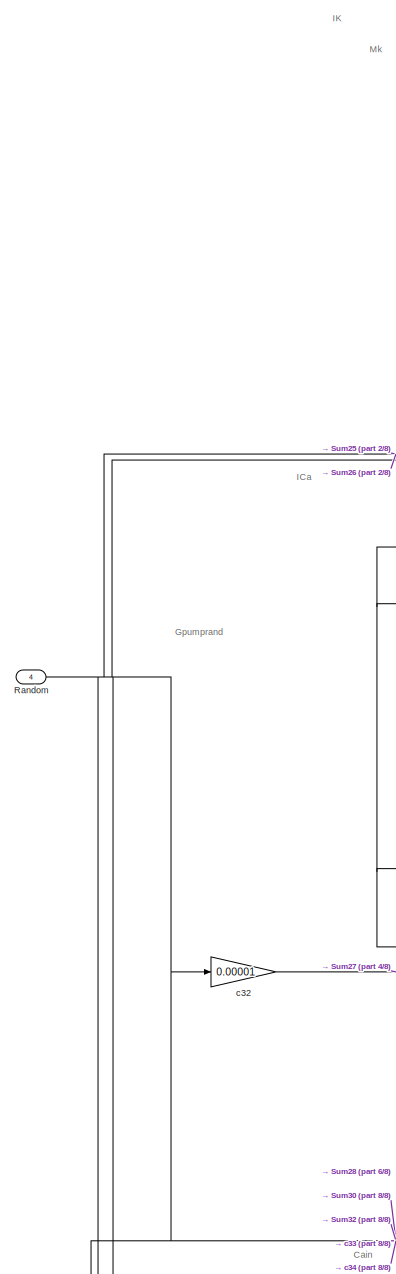
[diagram: SMDD - part 1/8, top left region]
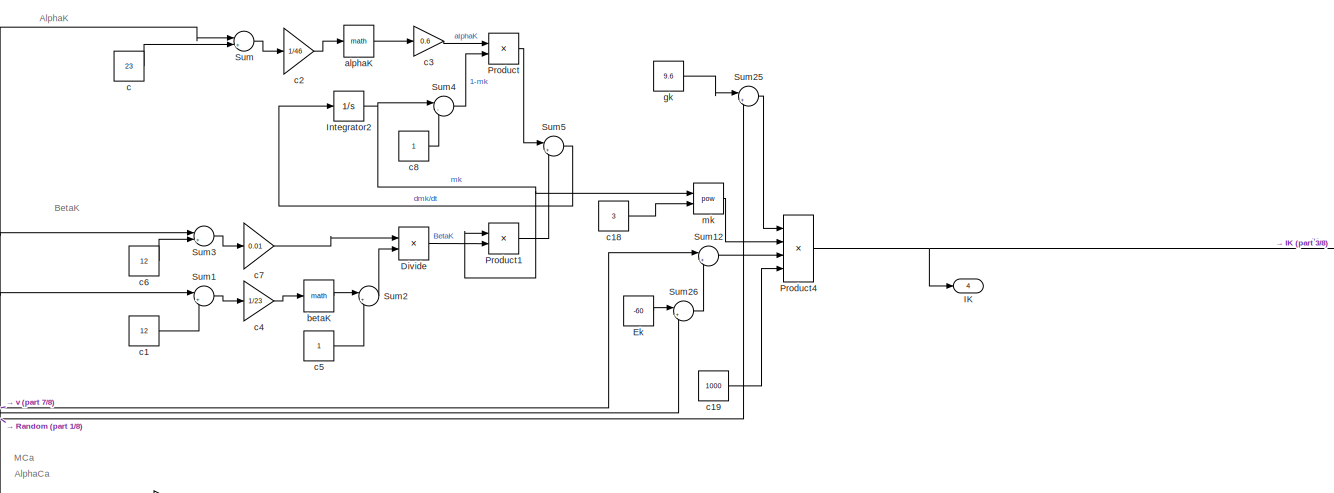
[diagram: SMDD - part 2/8, top center region]
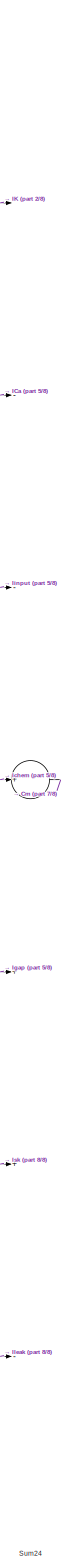
[diagram: SMDD - part 3/8, right side, full height]
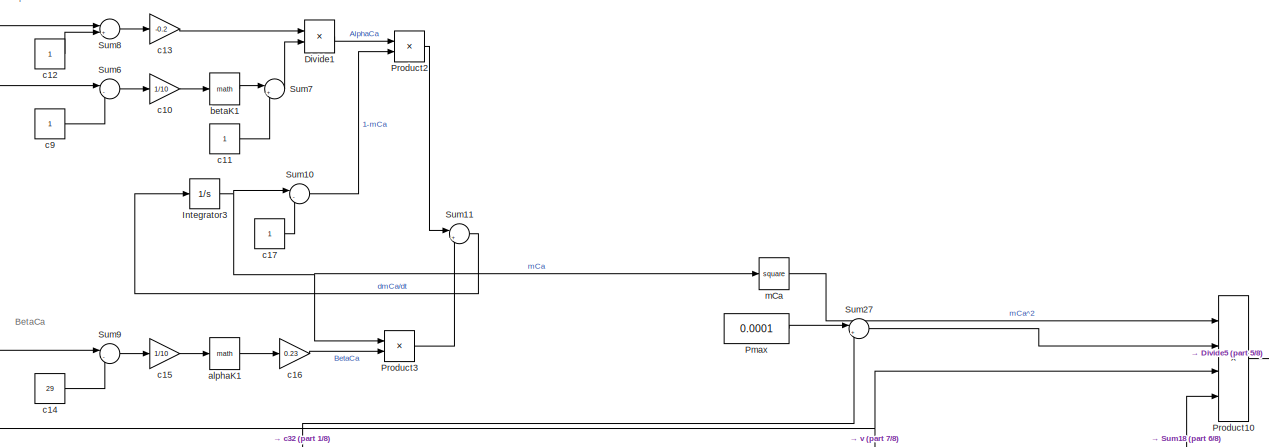
[diagram: SMDD - part 4/8, top center region]
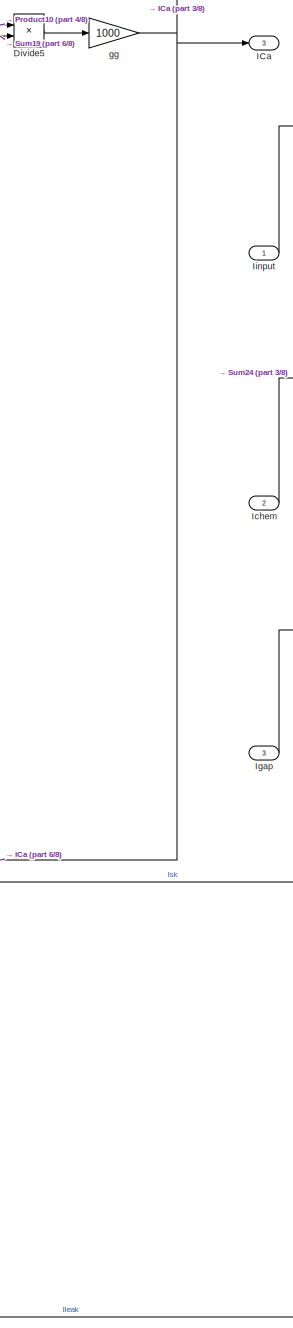
[diagram: SMDD - part 5/8, middle right region]
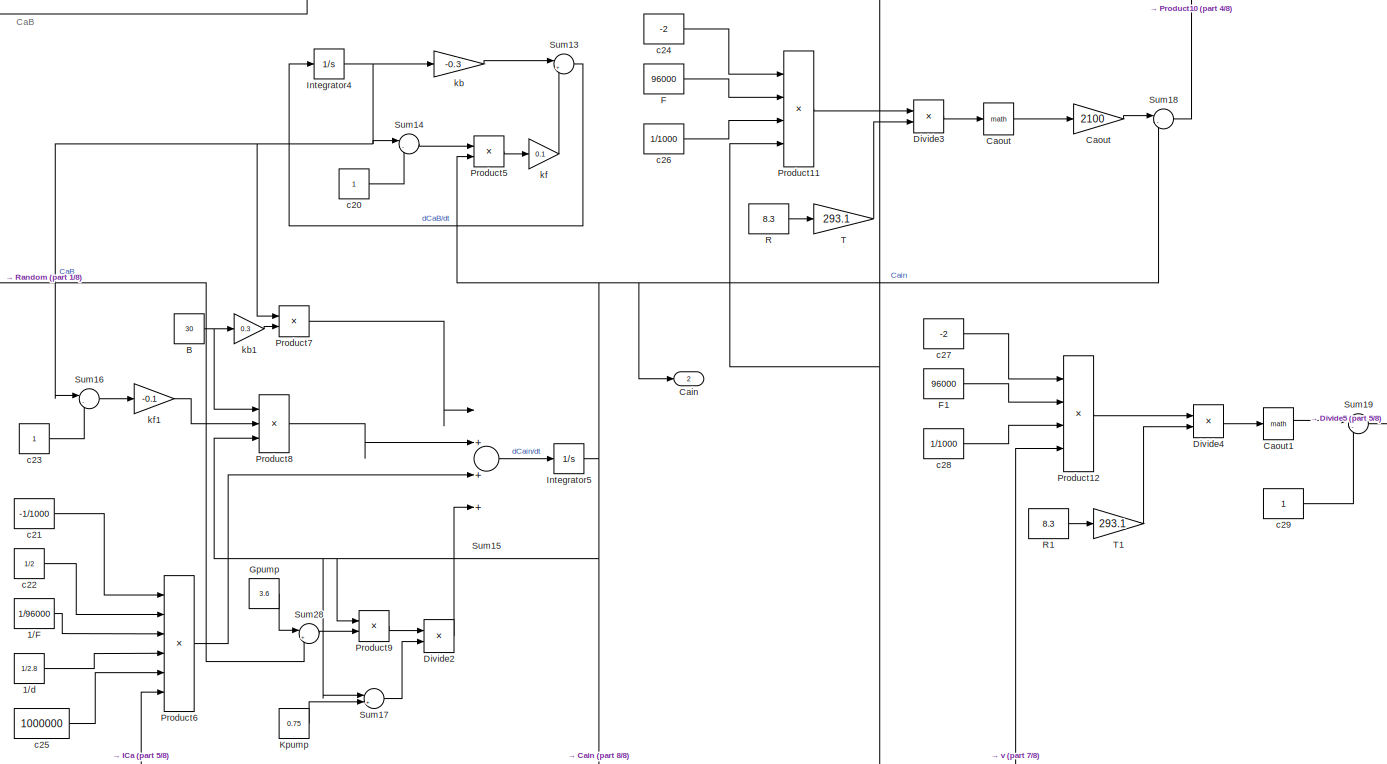
[diagram: SMDD - part 6/8, central region]
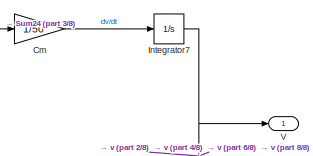
[diagram: SMDD - part 7/8, middle right region]
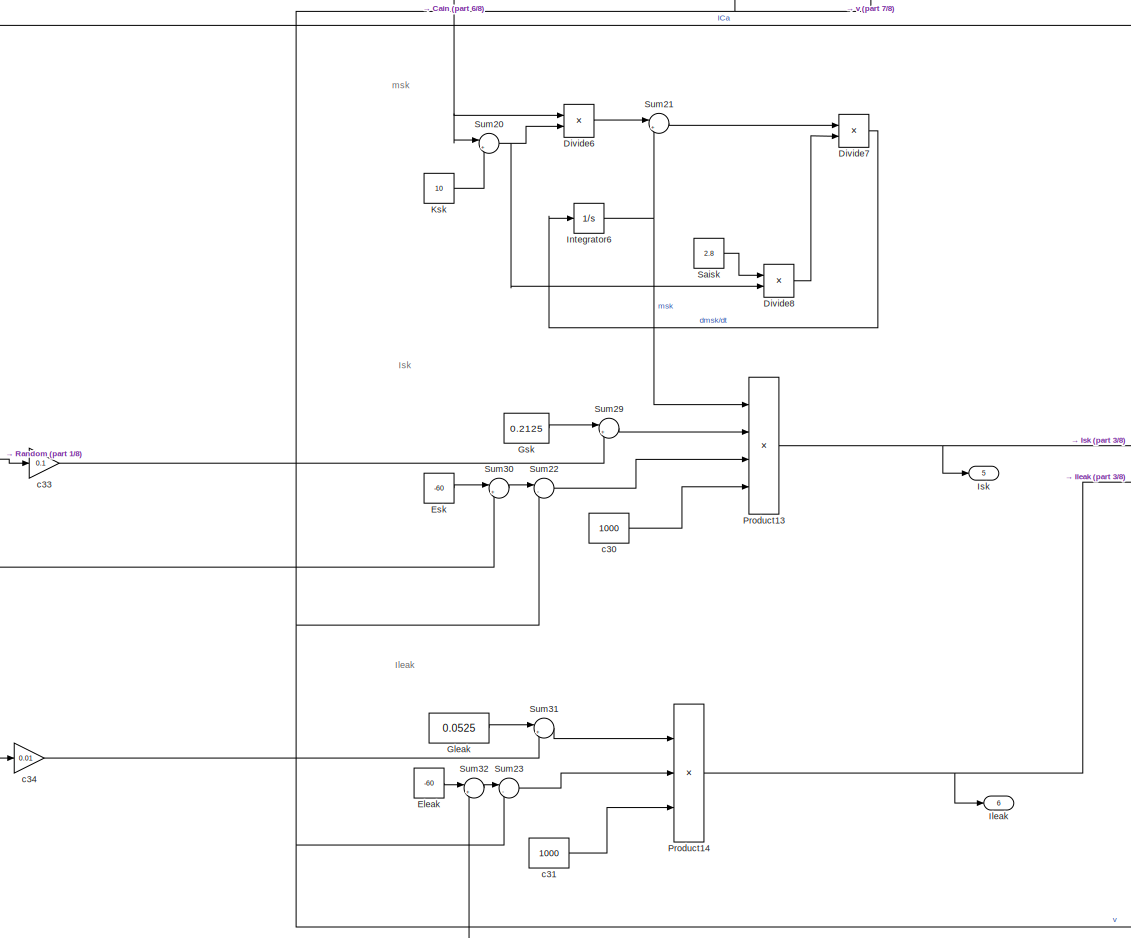
[diagram: SMDD - part 8/8, bottom center region]
BLOCK [SubSystem] SMDD
  Ports = [4, 6]
  RequestExecContextInheritance = off
  Variant = off
BLOCK [Constant] SMDD/1//F
  Value = 1/96000
BLOCK [Constant] SMDD/1//d
  Value = 1/2.8
BLOCK [Constant] SMDD/B
  Value = 30
BLOCK [Outport] SMDD/Cain 
  IconDisplay = Port number
  Port = 2
BLOCK [Math] SMDD/Caout
  Ports = [1, 1]
BLOCK [Gain] SMDD/Caout 
  Gain = 2100
  OutDataTypeStr = Inherit: Inherit via internal rule
  ParamDataTypeStr = Inherit: Inherit via internal rule
  SaturateOnIntegerOverflow = off
BLOCK [Math] SMDD/Caout1
  Ports = [1, 1]
BLOCK [Gain] SMDD/Cm 
  Gain = 1/50
  OutDataTypeStr = Inherit: Inherit via internal rule
  ParamDataTypeStr = Inherit: Inherit via internal rule
  SaturateOnIntegerOverflow = off
BLOCK [Product] SMDD/Divide
  InputSameDT = off
  Inputs = */
  OutDataTypeStr = Inherit: Inherit via internal rule
  Ports = [2, 1]
  RndMeth = Floor
  SaturateOnIntegerOverflow = off
BLOCK [Product] SMDD/Divide1
  InputSameDT = off
  Inputs = */
  OutDataTypeStr = Inherit: Inherit via internal rule
  Ports = [2, 1]
  RndMeth = Floor
  SaturateOnIntegerOverflow = off
BLOCK [Product] SMDD/Divide2
  InputSameDT = off
  Inputs = */
  OutDataTypeStr = Inherit: Inherit via internal rule
  Ports = [2, 1]
  RndMeth = Floor
  SaturateOnIntegerOverflow = off
BLOCK [Product] SMDD/Divide3
  InputSameDT = off
  Inputs = */
  OutDataTypeStr = Inherit: Inherit via internal rule
  Ports = [2, 1]
  RndMeth = Floor
  SaturateOnIntegerOverflow = off
BLOCK [Product] SMDD/Divide4
  InputSameDT = off
  Inputs = */
  OutDataTypeStr = Inherit: Inherit via internal rule
  Ports = [2, 1]
  RndMeth = Floor
  SaturateOnIntegerOverflow = off
BLOCK [Product] SMDD/Divide5
  InputSameDT = off
  Inputs = */
  OutDataTypeStr = Inherit: Inherit via internal rule
  Ports = [2, 1]
  RndMeth = Floor
  SaturateOnIntegerOverflow = off
BLOCK [Product] SMDD/Divide6
  InputSameDT = off
  Inputs = */
  OutDataTypeStr = Inherit: Inherit via internal rule
  Ports = [2, 1]
  RndMeth = Floor
  SaturateOnIntegerOverflow = off
BLOCK [Product] SMDD/Divide7
  InputSameDT = off
  Inputs = */
  OutDataTypeStr = Inherit: Inherit via internal rule
  Ports = [2, 1]
  RndMeth = Floor
  SaturateOnIntegerOverflow = off
BLOCK [Product] SMDD/Divide8
  InputSameDT = off
  Inputs = */
  OutDataTypeStr = Inherit: Inherit via internal rule
  Ports = [2, 1]
  RndMeth = Floor
  SaturateOnIntegerOverflow = off
BLOCK [Constant] SMDD/Ek 
  Value = -60
BLOCK [Constant] SMDD/Eleak
  Value = -60
BLOCK [Constant] SMDD/Esk
  Value = -60
BLOCK [Constant] SMDD/F
  Value = 96000
BLOCK [Constant] SMDD/F1
  Value = 96000
BLOCK [Constant] SMDD/Gleak
  Value = 0.0525
BLOCK [Constant] SMDD/Gpump
  Value = 3.6
BLOCK [Constant] SMDD/Gsk
  Value = 0.2125
BLOCK [Outport] SMDD/ICa
  IconDisplay = Port number
  Port = 3
BLOCK [Outport] SMDD/IK
  IconDisplay = Port number
  Port = 4
BLOCK [Inport] SMDD/Ichem
  IconDisplay = Port number
  Port = 2
BLOCK [Inport] SMDD/Igap
  IconDisplay = Port number
  Port = 3
BLOCK [Inport] SMDD/Iinput
  IconDisplay = Port number
BLOCK [Outport] SMDD/Ileak
  IconDisplay = Port number
  Port = 6
BLOCK [Integrator] SMDD/Integrator2
  Ports = [1, 1]
BLOCK [Integrator] SMDD/Integrator3
  InitialCondition = 0.001
  Ports = [1, 1]
BLOCK [Integrator] SMDD/Integrator4
  Ports = [1, 1]
BLOCK [Integrator] SMDD/Integrator5
  Ports = [1, 1]
BLOCK [Integrator] SMDD/Integrator6
  InitialCondition = 1
  Ports = [1, 1]
BLOCK [Integrator] SMDD/Integrator7
  InitialCondition = -60
  Ports = [1, 1]
BLOCK [Outport] SMDD/Isk
  IconDisplay = Port number
  Port = 5
BLOCK [Constant] SMDD/Kpump
  Value = 0.75
BLOCK [Constant] SMDD/Ksk
  Value = 10
BLOCK [Constant] SMDD/Pmax
  Value = 0.0001
BLOCK [Product] SMDD/Product
  InputSameDT = off
  OutDataTypeStr = Inherit: Inherit via internal rule
  Ports = [2, 1]
  RndMeth = Floor
  SaturateOnIntegerOverflow = off
BLOCK [Product] SMDD/Product1
  InputSameDT = off
  OutDataTypeStr = Inherit: Inherit via internal rule
  Ports = [2, 1]
  RndMeth = Floor
  SaturateOnIntegerOverflow = off
BLOCK [Product] SMDD/Product10
  InputSameDT = off
  Inputs = 4
  OutDataTypeStr = Inherit: Inherit via internal rule
  Ports = [4, 1]
  RndMeth = Floor
  SaturateOnIntegerOverflow = off
BLOCK [Product] SMDD/Product11
  InputSameDT = off
  Inputs = 4
  OutDataTypeStr = Inherit: Inherit via internal rule
  Ports = [4, 1]
  RndMeth = Floor
  SaturateOnIntegerOverflow = off
BLOCK [Product] SMDD/Product12
  InputSameDT = off
  Inputs = 4
  OutDataTypeStr = Inherit: Inherit via internal rule
  Ports = [4, 1]
  RndMeth = Floor
  SaturateOnIntegerOverflow = off
BLOCK [Product] SMDD/Product13
  InputSameDT = off
  Inputs = 4
  OutDataTypeStr = Inherit: Inherit via internal rule
  Ports = [4, 1]
  RndMeth = Floor
  SaturateOnIntegerOverflow = off
BLOCK [Product] SMDD/Product14
  InputSameDT = off
  Inputs = 3
  OutDataTypeStr = Inherit: Inherit via internal rule
  Ports = [3, 1]
  RndMeth = Floor
  SaturateOnIntegerOverflow = off
BLOCK [Product] SMDD/Product2
  InputSameDT = off
  OutDataTypeStr = Inherit: Inherit via internal rule
  Ports = [2, 1]
  RndMeth = Floor
  SaturateOnIntegerOverflow = off
BLOCK [Product] SMDD/Product3
  InputSameDT = off
  OutDataTypeStr = Inherit: Inherit via internal rule
  Ports = [2, 1]
  RndMeth = Floor
  SaturateOnIntegerOverflow = off
BLOCK [Product] SMDD/Product4
  InputSameDT = off
  Inputs = 4
  OutDataTypeStr = Inherit: Inherit via internal rule
  Ports = [4, 1]
  RndMeth = Floor
  SaturateOnIntegerOverflow = off
BLOCK [Product] SMDD/Product5
  InputSameDT = off
  OutDataTypeStr = Inherit: Inherit via internal rule
  Ports = [2, 1]
  RndMeth = Floor
  SaturateOnIntegerOverflow = off
BLOCK [Product] SMDD/Product6
  InputSameDT = off
  Inputs = 6
  OutDataTypeStr = Inherit: Inherit via internal rule
  Ports = [6, 1]
  RndMeth = Floor
  SaturateOnIntegerOverflow = off
BLOCK [Product] SMDD/Product7
  InputSameDT = off
  OutDataTypeStr = Inherit: Inherit via internal rule
  Ports = [2, 1]
  RndMeth = Floor
  SaturateOnIntegerOverflow = off
BLOCK [Product] SMDD/Product8
  InputSameDT = off
  Inputs = 3
  OutDataTypeStr = Inherit: Inherit via internal rule
  Ports = [3, 1]
  RndMeth = Floor
  SaturateOnIntegerOverflow = off
BLOCK [Product] SMDD/Product9
  InputSameDT = off
  OutDataTypeStr = Inherit: Inherit via internal rule
  Ports = [2, 1]
  RndMeth = Floor
  SaturateOnIntegerOverflow = off
BLOCK [Constant] SMDD/R
  Value = 8.3
BLOCK [Constant] SMDD/R1
  Value = 8.3
BLOCK [Inport] SMDD/Random
  IconDisplay = Port number
  Port = 4
BLOCK [Constant] SMDD/Saisk
  Value = 2.8
BLOCK [Sum] SMDD/Sum
  IconShape = round
  InputSameDT = off
  Inputs = |+-
  OutDataTypeStr = Inherit: Inherit via internal rule
  Ports = [2, 1]
  SaturateOnIntegerOverflow = off
BLOCK [Sum] SMDD/Sum1
  IconShape = round
  InputSameDT = off
  Inputs = |++
  OutDataTypeStr = Inherit: Inherit via internal rule
  Ports = [2, 1]
  SaturateOnIntegerOverflow = off
BLOCK [Sum] SMDD/Sum10
  IconShape = round
  InputSameDT = off
  Inputs = |-+
  OutDataTypeStr = Inherit: Inherit via internal rule
  Ports = [2, 1]
  SaturateOnIntegerOverflow = off
BLOCK [Sum] SMDD/Sum11
  IconShape = round
  InputSameDT = off
  Inputs = |+-
  OutDataTypeStr = Inherit: Inherit via internal rule
  Ports = [2, 1]
  SaturateOnIntegerOverflow = off
BLOCK [Sum] SMDD/Sum12
  IconShape = round
  InputSameDT = off
  Inputs = |+-
  OutDataTypeStr = Inherit: Inherit via internal rule
  Ports = [2, 1]
  SaturateOnIntegerOverflow = off
BLOCK [Sum] SMDD/Sum13
  IconShape = round
  InputSameDT = off
  Inputs = |++
  OutDataTypeStr = Inherit: Inherit via internal rule
  Ports = [2, 1]
  SaturateOnIntegerOverflow = off
BLOCK [Sum] SMDD/Sum14
  IconShape = round
  InputSameDT = off
  Inputs = |-+
  OutDataTypeStr = Inherit: Inherit via internal rule
  Ports = [2, 1]
  SaturateOnIntegerOverflow = off
BLOCK [Sum] SMDD/Sum15
  InputSameDT = off
  Inputs = |+++-
  OutDataTypeStr = Inherit: Inherit via internal rule
  Ports = [4, 1]
  SaturateOnIntegerOverflow = off
BLOCK [Sum] SMDD/Sum16
  IconShape = round
  InputSameDT = off
  Inputs = |-+
  OutDataTypeStr = Inherit: Inherit via internal rule
  Ports = [2, 1]
  SaturateOnIntegerOverflow = off
BLOCK [Sum] SMDD/Sum17
  IconShape = round
  InputSameDT = off
  Inputs = |++
  OutDataTypeStr = Inherit: Inherit via internal rule
  Ports = [2, 1]
  SaturateOnIntegerOverflow = off
BLOCK [Sum] SMDD/Sum18
  IconShape = round
  InputSameDT = off
  Inputs = |-+
  OutDataTypeStr = Inherit: Inherit via internal rule
  Ports = [2, 1]
  SaturateOnIntegerOverflow = off
BLOCK [Sum] SMDD/Sum19
  IconShape = round
  InputSameDT = off
  Inputs = |-+
  OutDataTypeStr = Inherit: Inherit via internal rule
  Ports = [2, 1]
  SaturateOnIntegerOverflow = off
BLOCK [Sum] SMDD/Sum2
  IconShape = round
  InputSameDT = off
  Inputs = |+-
  OutDataTypeStr = Inherit: Inherit via internal rule
  Ports = [2, 1]
  SaturateOnIntegerOverflow = off
BLOCK [Sum] SMDD/Sum20
  IconShape = round
  InputSameDT = off
  Inputs = |++
  OutDataTypeStr = Inherit: Inherit via internal rule
  Ports = [2, 1]
  SaturateOnIntegerOverflow = off
BLOCK [Sum] SMDD/Sum21
  IconShape = round
  InputSameDT = off
  Inputs = |+-
  OutDataTypeStr = Inherit: Inherit via internal rule
  Ports = [2, 1]
  SaturateOnIntegerOverflow = off
BLOCK [Sum] SMDD/Sum22
  IconShape = round
  InputSameDT = off
  Inputs = |-+
  OutDataTypeStr = Inherit: Inherit via internal rule
  Ports = [2, 1]
  SaturateOnIntegerOverflow = off
BLOCK [Sum] SMDD/Sum23
  IconShape = round
  InputSameDT = off
  Inputs = |-+
  OutDataTypeStr = Inherit: Inherit via internal rule
  Ports = [2, 1]
  SaturateOnIntegerOverflow = off
BLOCK [Sum] SMDD/Sum24
  InputSameDT = off
  Inputs = |--+++--
  OutDataTypeStr = Inherit: Inherit via internal rule
  Ports = [7, 1]
  SaturateOnIntegerOverflow = off
BLOCK [Sum] SMDD/Sum25
  IconShape = round
  InputSameDT = off
  Inputs = |++
  OutDataTypeStr = Inherit: Inherit via internal rule
  Ports = [2, 1]
  SaturateOnIntegerOverflow = off
BLOCK [Sum] SMDD/Sum26
  IconShape = round
  InputSameDT = off
  Inputs = |++
  OutDataTypeStr = Inherit: Inherit via internal rule
  Ports = [2, 1]
  SaturateOnIntegerOverflow = off
BLOCK [Sum] SMDD/Sum27
  IconShape = round
  InputSameDT = off
  Inputs = |++
  OutDataTypeStr = Inherit: Inherit via internal rule
  Ports = [2, 1]
  SaturateOnIntegerOverflow = off
BLOCK [Sum] SMDD/Sum28
  IconShape = round
  InputSameDT = off
  Inputs = |++
  OutDataTypeStr = Inherit: Inherit via internal rule
  Ports = [2, 1]
  SaturateOnIntegerOverflow = off
BLOCK [Sum] SMDD/Sum29
  IconShape = round
  InputSameDT = off
  Inputs = |++
  OutDataTypeStr = Inherit: Inherit via internal rule
  Ports = [2, 1]
  SaturateOnIntegerOverflow = off
BLOCK [Sum] SMDD/Sum3
  IconShape = round
  InputSameDT = off
  Inputs = |++
  OutDataTypeStr = Inherit: Inherit via internal rule
  Ports = [2, 1]
  SaturateOnIntegerOverflow = off
BLOCK [Sum] SMDD/Sum30
  IconShape = round
  InputSameDT = off
  Inputs = |++
  OutDataTypeStr = Inherit: Inherit via internal rule
  Ports = [2, 1]
  SaturateOnIntegerOverflow = off
BLOCK [Sum] SMDD/Sum31
  IconShape = round
  InputSameDT = off
  Inputs = |++
  OutDataTypeStr = Inherit: Inherit via internal rule
  Ports = [2, 1]
  SaturateOnIntegerOverflow = off
BLOCK [Sum] SMDD/Sum32
  IconShape = round
  InputSameDT = off
  Inputs = |++
  OutDataTypeStr = Inherit: Inherit via internal rule
  Ports = [2, 1]
  SaturateOnIntegerOverflow = off
BLOCK [Sum] SMDD/Sum4
  IconShape = round
  InputSameDT = off
  Inputs = |-+
  OutDataTypeStr = Inherit: Inherit via internal rule
  Ports = [2, 1]
  SaturateOnIntegerOverflow = off
BLOCK [Sum] SMDD/Sum5
  IconShape = round
  InputSameDT = off
  Inputs = |+-
  OutDataTypeStr = Inherit: Inherit via internal rule
  Ports = [2, 1]
  SaturateOnIntegerOverflow = off
BLOCK [Sum] SMDD/Sum6
  IconShape = round
  InputSameDT = off
  Inputs = |--
  OutDataTypeStr = Inherit: Inherit via internal rule
  Ports = [2, 1]
  SaturateOnIntegerOverflow = off
BLOCK [Sum] SMDD/Sum7
  IconShape = round
  InputSameDT = off
  Inputs = |+-
  OutDataTypeStr = Inherit: Inherit via internal rule
  Ports = [2, 1]
  SaturateOnIntegerOverflow = off
BLOCK [Sum] SMDD/Sum8
  IconShape = round
  InputSameDT = off
  Inputs = |++
  OutDataTypeStr = Inherit: Inherit via internal rule
  Ports = [2, 1]
  SaturateOnIntegerOverflow = off
BLOCK [Sum] SMDD/Sum9
  IconShape = round
  InputSameDT = off
  Inputs = |--
  OutDataTypeStr = Inherit: Inherit via internal rule
  Ports = [2, 1]
  SaturateOnIntegerOverflow = off
BLOCK [Gain] SMDD/T
  Gain = 293.1
  OutDataTypeStr = Inherit: Inherit via internal rule
  ParamDataTypeStr = Inherit: Inherit via internal rule
  SaturateOnIntegerOverflow = off
BLOCK [Gain] SMDD/T1
  Gain = 293.1
  OutDataTypeStr = Inherit: Inherit via internal rule
  ParamDataTypeStr = Inherit: Inherit via internal rule
  SaturateOnIntegerOverflow = off
BLOCK [Outport] SMDD/V
  IconDisplay = Port number
BLOCK [Math] SMDD/alphaK
  Ports = [1, 1]
BLOCK [Math] SMDD/alphaK1
  Ports = [1, 1]
BLOCK [Math] SMDD/betaK
  Ports = [1, 1]
BLOCK [Math] SMDD/betaK1
  Ports = [1, 1]
BLOCK [Constant] SMDD/c
  Value = 23
BLOCK [Constant] SMDD/c1
  Value = 12
BLOCK [Gain] SMDD/c10
  Gain = 1/10
  OutDataTypeStr = Inherit: Inherit via internal rule
  ParamDataTypeStr = Inherit: Inherit via internal rule
  SaturateOnIntegerOverflow = off
BLOCK [Constant] SMDD/c11
BLOCK [Constant] SMDD/c12
BLOCK [Gain] SMDD/c13
  Gain = -0.2
  OutDataTypeStr = Inherit: Inherit via internal rule
  ParamDataTypeStr = Inherit: Inherit via internal rule
  SaturateOnIntegerOverflow = off
BLOCK [Constant] SMDD/c14
  Value = 29
BLOCK [Gain] SMDD/c15
  Gain = 1/10
  OutDataTypeStr = Inherit: Inherit via internal rule
  ParamDataTypeStr = Inherit: Inherit via internal rule
  SaturateOnIntegerOverflow = off
BLOCK [Gain] SMDD/c16
  Gain = 0.23
  OutDataTypeStr = Inherit: Inherit via internal rule
  ParamDataTypeStr = Inherit: Inherit via internal rule
  SaturateOnIntegerOverflow = off
BLOCK [Constant] SMDD/c17
BLOCK [Constant] SMDD/c18
  Value = 3
BLOCK [Constant] SMDD/c19
  Value = 1000
BLOCK [Gain] SMDD/c2
  Gain = 1/46
  OutDataTypeStr = Inherit: Inherit via internal rule
  ParamDataTypeStr = Inherit: Inherit via internal rule
  SaturateOnIntegerOverflow = off
BLOCK [Constant] SMDD/c20
BLOCK [Constant] SMDD/c21
  Value = -1/1000
BLOCK [Constant] SMDD/c22
  Value = 1/2
BLOCK [Constant] SMDD/c23
BLOCK [Constant] SMDD/c24
  Value = -2
BLOCK [Constant] SMDD/c25
  Value = 1000000
BLOCK [Constant] SMDD/c26
  Value = 1/1000
BLOCK [Constant] SMDD/c27
  Value = -2
BLOCK [Constant] SMDD/c28
  Value = 1/1000
BLOCK [Constant] SMDD/c29
BLOCK [Gain] SMDD/c3
  Gain = 0.6
  OutDataTypeStr = Inherit: Inherit via internal rule
  ParamDataTypeStr = Inherit: Inherit via internal rule
  SaturateOnIntegerOverflow = off
BLOCK [Constant] SMDD/c30
  Value = 1000
BLOCK [Constant] SMDD/c31
  Value = 1000
BLOCK [Gain] SMDD/c32
  Gain = 0.00001
  OutDataTypeStr = Inherit: Inherit via internal rule
  ParamDataTypeStr = Inherit: Inherit via internal rule
  SaturateOnIntegerOverflow = off
BLOCK [Gain] SMDD/c33
  Gain = 0.1
  OutDataTypeStr = Inherit: Inherit via internal rule
  ParamDataTypeStr = Inherit: Inherit via internal rule
  SaturateOnIntegerOverflow = off
BLOCK [Gain] SMDD/c34
  Gain = 0.01
  OutDataTypeStr = Inherit: Inherit via internal rule
  ParamDataTypeStr = Inherit: Inherit via internal rule
  SaturateOnIntegerOverflow = off
BLOCK [Gain] SMDD/c4
  Gain = 1/23
  OutDataTypeStr = Inherit: Inherit via internal rule
  ParamDataTypeStr = Inherit: Inherit via internal rule
  SaturateOnIntegerOverflow = off
BLOCK [Constant] SMDD/c5
BLOCK [Constant] SMDD/c6
  Value = 12
BLOCK [Gain] SMDD/c7
  Gain = 0.01
  OutDataTypeStr = Inherit: Inherit via internal rule
  ParamDataTypeStr = Inherit: Inherit via internal rule
  SaturateOnIntegerOverflow = off
BLOCK [Constant] SMDD/c8
BLOCK [Constant] SMDD/c9
BLOCK [Gain] SMDD/gg 
  Gain = 1000
  OutDataTypeStr = Inherit: Inherit via internal rule
  ParamDataTypeStr = Inherit: Inherit via internal rule
  SaturateOnIntegerOverflow = off
BLOCK [Constant] SMDD/gk
  Value = 9.6
BLOCK [Gain] SMDD/kb
  Gain = -0.3
  OutDataTypeStr = Inherit: Inherit via internal rule
  ParamDataTypeStr = Inherit: Inherit via internal rule
  SaturateOnIntegerOverflow = off
BLOCK [Gain] SMDD/kb1
  Gain = 0.3
  OutDataTypeStr = Inherit: Inherit via internal rule
  ParamDataTypeStr = Inherit: Inherit via internal rule
  SaturateOnIntegerOverflow = off
BLOCK [Gain] SMDD/kf
  Gain = 0.1
  OutDataTypeStr = Inherit: Inherit via internal rule
  ParamDataTypeStr = Inherit: Inherit via internal rule
  SaturateOnIntegerOverflow = off
BLOCK [Gain] SMDD/kf1
  Gain = -0.1
  OutDataTypeStr = Inherit: Inherit via internal rule
  ParamDataTypeStr = Inherit: Inherit via internal rule
  SaturateOnIntegerOverflow = off
BLOCK [Math] SMDD/mCa
  Operator = square
  Ports = [1, 1]
BLOCK [Math] SMDD/mk
  Operator = pow
  Ports = [2, 1]
BLOCK [Scope] SYN
  NumInputPorts = 1
  Ports = [1]
  ScopeSpecificationString = Simulink.scopes.TimeScopeBlockCfg('CurrentConfiguration', extmgr.ConfigurationSet(extmgr.Configuration('Core','General UI',true),extmgr.Configuration('Core','Source UI',true),extmgr.Configuration('Sources','WiredSimulink',true),extmgr.Configuration('Visuals','Time Domain',true,'SerializedDisplays',{struct('MinYLimReal','-948.42578','MaxYLimReal','8535.83205','YLabelReal','','MinYLimMag',' 0.00000'...<+1421ch>
BLOCK [Scope] Scope1
  NumInputPorts = 1
  Ports = [1]
  ScopeSpecificationString = Simulink.scopes.TimeScopeBlockCfg('CurrentConfiguration', extmgr.ConfigurationSet(extmgr.Configuration('Core','General UI',true),extmgr.Configuration('Core','Source UI',true),extmgr.Configuration('Sources','WiredSimulink',true,'DataLoggingVariableName','ScopeData2'),extmgr.Configuration('Visuals','Time Domain',true,'SerializedDisplays',{struct('MinYLimReal','-0.15826','MaxYLimReal','1.42431','YLab...<+1441ch>
BLOCK [Scope] Scope2
  NumInputPorts = 1
  Ports = [1]
  ScopeSpecificationString = Simulink.scopes.TimeScopeBlockCfg('CurrentConfiguration', extmgr.ConfigurationSet(extmgr.Configuration('Core','General UI',true),extmgr.Configuration('Core','Source UI',true),extmgr.Configuration('Sources','WiredSimulink',true,'DataLoggingVariableName','ScopeData3'),extmgr.Configuration('Visuals','Time Domain',true,'SerializedDisplays',{struct('MinYLimReal','-250.00000','MaxYLimReal','2250.00000',...<+1455ch>
BLOCK [Scope] Scope3
  NumInputPorts = 1
  Ports = [1]
  ScopeSpecificationString = Simulink.scopes.TimeScopeBlockCfg('CurrentConfiguration', extmgr.ConfigurationSet(extmgr.Configuration('Core','General UI',true),extmgr.Configuration('Core','Source UI',true),extmgr.Configuration('Sources','WiredSimulink',true,'DataLoggingVariableName','ScopeData1'),extmgr.Configuration('Visuals','Time Domain',true,'SerializedDisplays',{struct('MinYLimReal','-62.44981','MaxYLimReal','-40.50205','Y...<+1446ch>
BLOCK [Scope] Scope4
  NumInputPorts = 1
  Ports = [1]
  ScopeSpecificationString = Simulink.scopes.TimeScopeBlockCfg('CurrentConfiguration', extmgr.ConfigurationSet(extmgr.Configuration('Core','General UI',true),extmgr.Configuration('Core','Source UI',true),extmgr.Configuration('Sources','WiredSimulink',true,'DataLoggingVariableName','ScopeData4'),extmgr.Configuration('Visuals','Time Domain',true,'SerializedDisplays',{struct('MinYLimReal','-369.68032','MaxYLimReal','919.97773','...<+1840ch>
BLOCK [SignalGenerator] Signal Generator
  Amplitude = 0
  Frequency = 1000000
  Ports = [0, 1]
  WaveForm = random
BLOCK [SignalGenerator] Signal Generator1
  Amplitude = 0.5
  Ports = [0, 1]
  WaveForm = random
BLOCK [SignalGenerator] Signal Generator10
  Amplitude = 0
  Frequency = 100
  Ports = [0, 1]
  WaveForm = random
BLOCK [Step] Step
  After = 2000
  SampleTime = 0
  Time = 50
BLOCK [Sum] Sum1
  IconShape = round
  InputSameDT = off
  Inputs = |++
  OutDataTypeStr = Inherit: Inherit via internal rule
  Ports = [2, 1]
  SaturateOnIntegerOverflow = off
BLOCK [Sum] Sum11
  IconShape = round
  InputSameDT = off
  Inputs = |++
  OutDataTypeStr = Inherit: Inherit via internal rule
  Ports = [2, 1]
  SaturateOnIntegerOverflow = off
BLOCK [Sum] Sum2
  InputSameDT = off
  Inputs = |++++
  OutDataTypeStr = Inherit: Inherit via internal rule
  Ports = [4, 1]
  SaturateOnIntegerOverflow = off
BLOCK [Sum] Sum4
  IconShape = round
  InputSameDT = off
  Inputs = |++
  OutDataTypeStr = Inherit: Inherit via internal rule
  Ports = [2, 1]
  SaturateOnIntegerOverflow = off
BLOCK [Scope] Y
  NumInputPorts = 1
  Ports = [1]
  ScopeSpecificationString = Simulink.scopes.TimeScopeBlockCfg('CurrentConfiguration', extmgr.ConfigurationSet(extmgr.Configuration('Core','General UI',true),extmgr.Configuration('Core','Source UI',true),extmgr.Configuration('Sources','WiredSimulink',true,'DataLoggingVariableName','ScopeData1'),extmgr.Configuration('Visuals','Time Domain',true,'SerializedDisplays',{struct('MinYLimReal','0.47582','MaxYLimReal','8.2828','YLabel...<+1751ch>
BLOCK [SubSystem] Y1
  Ports = [1, 1]
  RequestExecContextInheritance = off
  Variant = off
BLOCK [Constant] Y1/C0
BLOCK [Inport] Y1/Cain
  IconDisplay = Port number
BLOCK [Product] Y1/Divide
  InputSameDT = off
  Inputs = */
  OutDataTypeStr = Inherit: Inherit via internal rule
  Ports = [2, 1]
  RndMeth = Floor
  SaturateOnIntegerOverflow = off
BLOCK [Product] Y1/Divide1
  InputSameDT = off
  Inputs = */
  OutDataTypeStr = Inherit: Inherit via internal rule
  Ports = [2, 1]
  RndMeth = Floor
  SaturateOnIntegerOverflow = off
BLOCK [Gain] Y1/Gain
  Gain = 1000
  OutDataTypeStr = Inherit: Inherit via internal rule
  ParamDataTypeStr = Inherit: Inherit via internal rule
  SaturateOnIntegerOverflow = off
BLOCK [Constant] Y1/Kyc360
  Value = 250
BLOCK [Product] Y1/Product
  InputSameDT = off
  OutDataTypeStr = Inherit: Inherit via internal rule
  Ports = [2, 1]
  RndMeth = Floor
  SaturateOnIntegerOverflow = off
BLOCK [Constant] Y1/Rmax
  Value = 9.3
BLOCK [Constant] Y1/Rmin
  Value = 1.4
BLOCK [Sum] Y1/Sum2
  IconShape = round
  InputSameDT = off
  Inputs = |++
  OutDataTypeStr = Inherit: Inherit via internal rule
  Ports = [2, 1]
  SaturateOnIntegerOverflow = off
BLOCK [Sum] Y1/Sum3
  IconShape = round
  InputSameDT = off
  Inputs = |++
  OutDataTypeStr = Inherit: Inherit via internal rule
  Ports = [2, 1]
  SaturateOnIntegerOverflow = off
BLOCK [Outport] Y1/Y
  IconDisplay = Port number
BLOCK [Constant] Y1/eta
  Value = 1.7
BLOCK [Math] Y1/nomirator
  Operator = pow
  Ports = [2, 1]
BLOCK [SubSystem] Y2
  Ports = [1, 1]
  RequestExecContextInheritance = off
  Variant = off
BLOCK [Constant] Y2/C0
BLOCK [Inport] Y2/Cain
  IconDisplay = Port number
BLOCK [Product] Y2/Divide
  InputSameDT = off
  Inputs = */
  OutDataTypeStr = Inherit: Inherit via internal rule
  Ports = [2, 1]
  RndMeth = Floor
  SaturateOnIntegerOverflow = off
BLOCK [Product] Y2/Divide1
  InputSameDT = off
  Inputs = */
  OutDataTypeStr = Inherit: Inherit via internal rule
  Ports = [2, 1]
  RndMeth = Floor
  SaturateOnIntegerOverflow = off
BLOCK [Gain] Y2/Gain
  Gain = 1000
  OutDataTypeStr = Inherit: Inherit via internal rule
  ParamDataTypeStr = Inherit: Inherit via internal rule
  SaturateOnIntegerOverflow = off
BLOCK [Constant] Y2/Kyc360
  Value = 250
BLOCK [Product] Y2/Product
  InputSameDT = off
  OutDataTypeStr = Inherit: Inherit via internal rule
  Ports = [2, 1]
  RndMeth = Floor
  SaturateOnIntegerOverflow = off
BLOCK [Constant] Y2/Rmax
  Value = 9.3
BLOCK [Constant] Y2/Rmin
  Value = 1.4
BLOCK [Sum] Y2/Sum2
  IconShape = round
  InputSameDT = off
  Inputs = |++
  OutDataTypeStr = Inherit: Inherit via internal rule
  Ports = [2, 1]
  SaturateOnIntegerOverflow = off
BLOCK [Sum] Y2/Sum3
  IconShape = round
  InputSameDT = off
  Inputs = |++
  OutDataTypeStr = Inherit: Inherit via internal rule
  Ports = [2, 1]
  SaturateOnIntegerOverflow = off
BLOCK [Outport] Y2/Y
  IconDisplay = Port number
BLOCK [Constant] Y2/eta
  Value = 1.7
BLOCK [Math] Y2/nomirator
  Operator = pow
  Ports = [2, 1]
BLOCK [Scope] in
  NumInputPorts = 1
  Ports = [1]
  ScopeSpecificationString = Simulink.scopes.TimeScopeBlockCfg('CurrentConfiguration', extmgr.ConfigurationSet(extmgr.Configuration('Core','General UI',true,'FigureColor',[1 1 1]),extmgr.Configuration('Core','Source UI',true),extmgr.Configuration('Sources','WiredSimulink',true,'DataLoggingVariableName','ScopeData1'),extmgr.Configuration('Visuals','Time Domain',true,'SerializedDisplays',{struct('MinYLimReal','-860.17926','MaxY...<+1658ch>
BLOCK [Scope] vin
  NumInputPorts = 1
  Ports = [1]
  ScopeSpecificationString = Simulink.scopes.TimeScopeBlockCfg('CurrentConfiguration', extmgr.ConfigurationSet(extmgr.Configuration('Core','General UI',true,'FigureColor',[1 1 1]),extmgr.Configuration('Core','Source UI',true),extmgr.Configuration('Sources','WiredSimulink',true,'DataLoggingVariableName','ScopeData2'),extmgr.Configuration('Visuals','Time Domain',true,'SerializedDisplays',{struct('MinYLimReal','-62.63904','MaxYL...<+1647ch>
ANNOTATION PLM: AlphaCa
ANNOTATION PLM: AlphaK
ANNOTATION PLM: BetaCa
ANNOTATION PLM: BetaK
ANNOTATION PLM: CaB
ANNOTATION PLM: Cain
ANNOTATION PLM: ICa
ANNOTATION PLM: IK
ANNOTATION PLM: Ileak
ANNOTATION PLM: Isk
ANNOTATION PLM: MCa
ANNOTATION PLM: Mk
ANNOTATION PLM: msk
ANNOTATION PLM1: AlphaCa
ANNOTATION PLM1: AlphaK
ANNOTATION PLM1: BetaCa
ANNOTATION PLM1: BetaK
ANNOTATION PLM1: CaB
ANNOTATION PLM1: Cain
ANNOTATION PLM1: ICa
ANNOTATION PLM1: IK
ANNOTATION PLM1: Ileak
ANNOTATION PLM1: Isk
ANNOTATION PLM1: MCa
ANNOTATION PLM1: Mk
ANNOTATION PLM1: msk
ANNOTATION SMDD: AlphaCa
ANNOTATION SMDD: AlphaK
ANNOTATION SMDD: BetaCa
ANNOTATION SMDD: BetaK
ANNOTATION SMDD: CaB
ANNOTATION SMDD: Cain
ANNOTATION SMDD: Gpumprand
ANNOTATION SMDD: ICa
ANNOTATION SMDD: IK
ANNOTATION SMDD: Ileak
ANNOTATION SMDD: Isk
ANNOTATION SMDD: MCa
ANNOTATION SMDD: Mk
ANNOTATION SMDD: msk
LINE 1/Ggap:1 -> 1/Product2:3
LINE 1/Product2:1 -> 1/Igap:1
LINE 1/Sum6:1 -> 1/Product2:1
LINE 1/Vpost:1 -> 1/Sum6:2
LINE 1/Vpre:1 -> 1/Sum6:1
LINE 1/n:1 -> 1/Product2:2
LINE 14/Divide1:1 -> 14/Sum1:1
LINE 14/Divide2:1 -> 14/betaK1:1
LINE 14/Echem:1 -> 14/Sum6:1
LINE 14/Product2:1 -> 14/Divide1:1
LINE 14/Sum1:1 -> 14/Ichem:1
LINE 14/Sum6:1 -> 14/Product2:1
LINE 14/Sum7:1 -> 14/Divide1:2
LINE 14/Sum8:1 -> 14/Divide2:1
LINE 14/Vpost:1 -> 14/Sum6:2
LINE 14/Vpre:1 -> 14/Sum8:2
LINE 14/Vrange:1 -> 14/Divide2:2
LINE 14/Vshift:1 -> 14/Sum8:1
LINE 14/betaK1:1 -> 14/Sum7:1
LINE 14/c111:1 -> 14/Sum7:2
LINE 14/n:1 -> 14/Product2:2
LINE 17/Divide1:1 -> 17/Sum1:1
LINE 17/Divide2:1 -> 17/betaK1:1
LINE 17/Echem:1 -> 17/Sum6:1
LINE 17/Product2:1 -> 17/Divide1:1
LINE 17/Sum1:1 -> 17/Ichem:1
LINE 17/Sum6:1 -> 17/Product2:1
LINE 17/Sum7:1 -> 17/Divide1:2
LINE 17/Sum8:1 -> 17/Divide2:1
LINE 17/Vpost:1 -> 17/Sum6:2
LINE 17/Vpre:1 -> 17/Sum8:2
LINE 17/Vrange:1 -> 17/Divide2:2
LINE 17/Vshift:1 -> 17/Sum8:1
LINE 17/betaK1:1 -> 17/Sum7:1
LINE 17/c111:1 -> 17/Sum7:2
LINE 17/n:1 -> 17/Product2:2
NET 17:1 -> Mux2:1, Sum4:1
LINE 2/Ggap:1 -> 2/Product2:3
LINE 2/Product2:1 -> 2/Igap:1
LINE 2/Sum6:1 -> 2/Product2:1
LINE 2/Vpost:1 -> 2/Sum6:2
LINE 2/Vpre:1 -> 2/Sum6:1
LINE 2/n:1 -> 2/Product2:2
NET 2:1 -> Mux2:3, PLM1:3
LINE 3/Ggap:1 -> 3/Product2:3
LINE 3/Product2:1 -> 3/Igap:1
LINE 3/Sum6:1 -> 3/Product2:1
LINE 3/Vpost:1 -> 3/Sum6:2
LINE 3/Vpre:1 -> 3/Sum6:1
LINE 3/n:1 -> 3/Product2:2
LINE 4/Divide1:1 -> 4/Ichem:1
LINE 4/Divide2:1 -> 4/betaK1:1
LINE 4/Echem:1 -> 4/Sum6:1
LINE 4/Product2:1 -> 4/Divide1:1
LINE 4/Sum6:1 -> 4/Product2:1
LINE 4/Sum7:1 -> 4/Divide1:2
LINE 4/Sum8:1 -> 4/Divide2:1
LINE 4/Vpost:1 -> 4/Sum6:2
LINE 4/Vpre:1 -> 4/Sum8:2
LINE 4/Vrange:1 -> 4/Divide2:2
LINE 4/Vshift:1 -> 4/Sum8:1
LINE 4/betaK1:1 -> 4/Sum7:1
LINE 4/c111:1 -> 4/Sum7:2
LINE 4/n:1 -> 4/Product2:2
NET 4:1 -> Mux2:2, Sum4:2
LINE 5/Divide1:1 -> 5/Ichem:1
LINE 5/Divide2:1 -> 5/betaK1:1
LINE 5/Echem:1 -> 5/Sum6:1
LINE 5/Product2:1 -> 5/Divide1:1
LINE 5/Sum6:1 -> 5/Product2:1
LINE 5/Sum7:1 -> 5/Divide1:2
LINE 5/Sum8:1 -> 5/Divide2:1
LINE 5/Vpost:1 -> 5/Sum6:2
LINE 5/Vpre:1 -> 5/Sum8:2
LINE 5/Vrange:1 -> 5/Divide2:2
LINE 5/Vshift:1 -> 5/Sum8:1
LINE 5/betaK1:1 -> 5/Sum7:1
LINE 5/c111:1 -> 5/Sum7:2
LINE 5/n:1 -> 5/Product2:2
LINE 6/Divide1:1 -> 6/Sum1:1
LINE 6/Divide2:1 -> 6/betaK1:1
LINE 6/Echem:1 -> 6/Sum6:1
LINE 6/Product2:1 -> 6/Divide1:1
LINE 6/Sum1:1 -> 6/Ichem:1
LINE 6/Sum6:1 -> 6/Product2:1
LINE 6/Sum7:1 -> 6/Divide1:2
LINE 6/Sum8:1 -> 6/Divide2:1
LINE 6/Vpost:1 -> 6/Sum6:2
LINE 6/Vpre:1 -> 6/Sum8:2
LINE 6/Vrange:1 -> 6/Divide2:2
LINE 6/Vshift:1 -> 6/Sum8:1
LINE 6/betaK1:1 -> 6/Sum7:1
LINE 6/c111:1 -> 6/Sum7:2
LINE 6/n:1 -> 6/Product2:2
LINE Constant1:1 -> 4:3
LINE Constant2:1 -> 2:3
LINE Constant3:1 -> PLM1:1
LINE Constant5:1 -> 1:3
LINE Constant7:1 -> 17:3
LINE Constant9:1 -> 6:3
LINE Mux2:1 -> SYN:1
LINE Mux3:1 -> I:1
LINE Mux4:1 -> Y:1
LINE Mux5:1 -> Scope4:1
LINE PLM/1//F:1 -> PLM/Product6:3
LINE PLM/1//d:1 -> PLM/Product6:4
NET PLM/B:1 -> PLM/Product8:1, PLM/kb1:1
LINE PLM/Caout :1 -> PLM/Sum18:1
LINE PLM/Caout1:1 -> PLM/Sum19:1
LINE PLM/Caout:1 -> PLM/Caout :1
LINE PLM/Cm :1 -> PLM/Integrator7:1
LINE PLM/Divide1:1 -> PLM/Product2:1
LINE PLM/Divide2:1 -> PLM/Sum15:4
LINE PLM/Divide3:1 -> PLM/Caout:1
LINE PLM/Divide4:1 -> PLM/Caout1:1
LINE PLM/Divide5:1 -> PLM/gg :1
LINE PLM/Divide6:1 -> PLM/Sum21:1
LINE PLM/Divide7:1 -> PLM/Integrator6:1
LINE PLM/Divide8:1 -> PLM/Divide7:2
LINE PLM/Divide:1 -> PLM/Product1:2
LINE PLM/Ek :1 -> PLM/Sum12:2
LINE PLM/Eleak:1 -> PLM/Sum23:1
LINE PLM/Esk:1 -> PLM/Sum22:1
LINE PLM/F1:1 -> PLM/Product12:2
LINE PLM/F:1 -> PLM/Product11:2
LINE PLM/Gk :1 -> PLM/Product4:1
LINE PLM/Gleak:1 -> PLM/Product14:1
LINE PLM/Gpump:1 -> PLM/Product9:2
LINE PLM/Gsk:1 -> PLM/Product13:2
LINE PLM/Ichem:1 -> PLM/Sum24:4
LINE PLM/Igap:1 -> PLM/Sum24:5
LINE PLM/Iinput:1 -> PLM/Sum24:3
NET PLM/Integrator3:1 -> PLM/Product3:1, PLM/Sum10:1, PLM/mCa:1
NET PLM/Integrator4:1 -> PLM/Product7:1, PLM/Sum14:1, PLM/Sum16:1, PLM/kb:1
NET PLM/Integrator5:1 -> PLM/Cain :1, PLM/Divide6:1, PLM/Product5:2, PLM/Product8:3, PLM/Product9:1, PLM/Sum17:1, PLM/Sum18:2, PLM/Sum20:1
NET PLM/Integrator6:1 -> PLM/Product13:1, PLM/Sum21:2
NET PLM/Integrator7:1 -> PLM/Product10:3, PLM/Product11:4, PLM/Product12:4, PLM/Sum12:1, PLM/Sum1:1, PLM/Sum22:2, PLM/Sum23:2, PLM/Sum3:1, PLM/Sum6:1, PLM/Sum8:1, PLM/Sum9:1, PLM/Sum:1, PLM/V:1
NET PLM/Integratormk:1 -> PLM/Product1:1, PLM/Sum4:1, PLM/mk:1
LINE PLM/Kpump:1 -> PLM/Sum17:2
LINE PLM/Ksk:1 -> PLM/Sum20:2
LINE PLM/Pmax:1 -> PLM/Product10:2
LINE PLM/Product10:1 -> PLM/Divide5:1
LINE PLM/Product11:1 -> PLM/Divide3:1
LINE PLM/Product12:1 -> PLM/Divide4:1
NET PLM/Product13:1 -> PLM/Isk:1, PLM/Sum24:6
NET PLM/Product14:1 -> PLM/Ileak:1, PLM/Sum24:7
LINE PLM/Product1:1 -> PLM/Sum5:2
LINE PLM/Product2:1 -> PLM/Sum11:1
LINE PLM/Product3:1 -> PLM/Sum11:2
NET PLM/Product4:1 -> PLM/IK:1, PLM/Sum24:1
LINE PLM/Product5:1 -> PLM/kf:1
LINE PLM/Product6:1 -> PLM/Sum15:3
LINE PLM/Product7:1 -> PLM/Sum15:1
LINE PLM/Product8:1 -> PLM/Sum15:2
LINE PLM/Product9:1 -> PLM/Divide2:1
LINE PLM/Product:1 -> PLM/Sum5:1
LINE PLM/R1:1 -> PLM/T1:1
LINE PLM/R:1 -> PLM/T:1
LINE PLM/Saisk:1 -> PLM/Divide8:1
LINE PLM/Sum10:1 -> PLM/Product2:2
LINE PLM/Sum11:1 -> PLM/Integrator3:1
LINE PLM/Sum12:1 -> PLM/Product4:3
LINE PLM/Sum13:1 -> PLM/Integrator4:1
LINE PLM/Sum14:1 -> PLM/Product5:1
LINE PLM/Sum15:1 -> PLM/Integrator5:1
LINE PLM/Sum16:1 -> PLM/kf1:1
LINE PLM/Sum17:1 -> PLM/Divide2:2
LINE PLM/Sum18:1 -> PLM/Product10:4
LINE PLM/Sum19:1 -> PLM/Divide5:2
LINE PLM/Sum1:1 -> PLM/c4:1
NET PLM/Sum20:1 -> PLM/Divide6:2, PLM/Divide8:2
LINE PLM/Sum21:1 -> PLM/Divide7:1
LINE PLM/Sum22:1 -> PLM/Product13:3
LINE PLM/Sum23:1 -> PLM/Product14:2
LINE PLM/Sum24:1 -> PLM/Cm :1
LINE PLM/Sum2:1 -> PLM/Divide:2
LINE PLM/Sum3:1 -> PLM/c7:1
LINE PLM/Sum4:1 -> PLM/Product:2
LINE PLM/Sum5:1 -> PLM/Integratormk:1
LINE PLM/Sum6:1 -> PLM/c10:1
LINE PLM/Sum7:1 -> PLM/Divide1:2
LINE PLM/Sum8:1 -> PLM/c13:1
LINE PLM/Sum9:1 -> PLM/c15:1
LINE PLM/Sum:1 -> PLM/c2:1
LINE PLM/T1:1 -> PLM/Divide4:2
LINE PLM/T:1 -> PLM/Divide3:2
LINE PLM/alphaK1:1 -> PLM/c16:1
LINE PLM/alphaK:1 -> PLM/c3:1
LINE PLM/betaK1:1 -> PLM/Sum7:1
LINE PLM/betaK:1 -> PLM/Sum2:1
LINE PLM/c10:1 -> PLM/betaK1:1
LINE PLM/c11:1 -> PLM/Sum7:2
LINE PLM/c12:1 -> PLM/Sum8:2
LINE PLM/c13:1 -> PLM/Divide1:1
LINE PLM/c14:1 -> PLM/Sum9:2
LINE PLM/c15:1 -> PLM/alphaK1:1
LINE PLM/c16:1 -> PLM/Product3:2
LINE PLM/c17:1 -> PLM/Sum10:2
LINE PLM/c18:1 -> PLM/mk:2
LINE PLM/c19:1 -> PLM/Product4:4
LINE PLM/c1:1 -> PLM/Sum1:2
LINE PLM/c20:1 -> PLM/Sum14:2
LINE PLM/c21:1 -> PLM/Product6:1
LINE PLM/c22:1 -> PLM/Product6:2
LINE PLM/c23:1 -> PLM/Sum16:2
LINE PLM/c24:1 -> PLM/Product11:1
LINE PLM/c25:1 -> PLM/Product6:5
LINE PLM/c26:1 -> PLM/Product11:3
LINE PLM/c27:1 -> PLM/Product12:1
LINE PLM/c28:1 -> PLM/Product12:3
LINE PLM/c29:1 -> PLM/Sum19:2
LINE PLM/c2:1 -> PLM/alphaK:1
LINE PLM/c30:1 -> PLM/Product13:4
LINE PLM/c31:1 -> PLM/Product14:3
LINE PLM/c3:1 -> PLM/Product:1
LINE PLM/c4:1 -> PLM/betaK:1
LINE PLM/c5:1 -> PLM/Sum2:2
LINE PLM/c6:1 -> PLM/Sum3:2
LINE PLM/c7:1 -> PLM/Divide:1
LINE PLM/c8:1 -> PLM/Sum4:2
LINE PLM/c9:1 -> PLM/Sum6:2
LINE PLM/c:1 -> PLM/Sum:2
NET PLM/gg :1 -> PLM/ICa:1, PLM/Product6:6, PLM/Sum24:2
LINE PLM/kb1:1 -> PLM/Product7:2
LINE PLM/kb:1 -> PLM/Sum13:1
LINE PLM/kf1:1 -> PLM/Product8:2
LINE PLM/kf:1 -> PLM/Sum13:2
LINE PLM/mCa:1 -> PLM/Product10:1
LINE PLM/mk:1 -> PLM/Product4:2
LINE PLM1/1//F:1 -> PLM1/Product6:3
LINE PLM1/1//d:1 -> PLM1/Product6:4
NET PLM1/B:1 -> PLM1/Product8:1, PLM1/kb1:1
LINE PLM1/Caout :1 -> PLM1/Sum18:1
LINE PLM1/Caout1:1 -> PLM1/Sum19:1
LINE PLM1/Caout:1 -> PLM1/Caout :1
LINE PLM1/Cm :1 -> PLM1/Integrator7:1
LINE PLM1/Divide1:1 -> PLM1/Product2:1
LINE PLM1/Divide2:1 -> PLM1/Sum15:4
LINE PLM1/Divide3:1 -> PLM1/Caout:1
LINE PLM1/Divide4:1 -> PLM1/Caout1:1
LINE PLM1/Divide5:1 -> PLM1/gg :1
LINE PLM1/Divide6:1 -> PLM1/Sum21:1
LINE PLM1/Divide7:1 -> PLM1/Integrator6:1
LINE PLM1/Divide8:1 -> PLM1/Divide7:2
LINE PLM1/Divide:1 -> PLM1/Product1:2
LINE PLM1/Ek :1 -> PLM1/Sum12:2
LINE PLM1/Eleak:1 -> PLM1/Sum23:1
LINE PLM1/Esk:1 -> PLM1/Sum22:1
LINE PLM1/F1:1 -> PLM1/Product12:2
LINE PLM1/F:1 -> PLM1/Product11:2
LINE PLM1/Gk :1 -> PLM1/Product4:1
LINE PLM1/Gleak:1 -> PLM1/Product14:1
LINE PLM1/Gpump:1 -> PLM1/Product9:2
LINE PLM1/Gsk:1 -> PLM1/Product13:2
LINE PLM1/Ichem:1 -> PLM1/Sum24:4
LINE PLM1/Igap:1 -> PLM1/Sum24:5
LINE PLM1/Iinput:1 -> PLM1/Sum24:3
NET PLM1/Integrator2:1 -> PLM1/Product1:1, PLM1/Sum4:1, PLM1/mk:1
NET PLM1/Integrator3:1 -> PLM1/Product3:1, PLM1/Sum10:1, PLM1/mCa:1
NET PLM1/Integrator4:1 -> PLM1/Product7:1, PLM1/Sum14:1, PLM1/Sum16:1, PLM1/kb:1
NET PLM1/Integrator5:1 -> PLM1/Cain :1, PLM1/Divide6:1, PLM1/Product5:2, PLM1/Product8:3, PLM1/Product9:1, PLM1/Sum17:1, PLM1/Sum18:2, PLM1/Sum20:1
NET PLM1/Integrator6:1 -> PLM1/Product13:1, PLM1/Sum21:2
NET PLM1/Integrator7:1 -> PLM1/Product10:3, PLM1/Product11:4, PLM1/Product12:4, PLM1/Sum12:1, PLM1/Sum1:1, PLM1/Sum22:2, PLM1/Sum23:2, PLM1/Sum3:1, PLM1/Sum6:1, PLM1/Sum8:1, PLM1/Sum9:1, PLM1/Sum:1, PLM1/V:1
LINE PLM1/Kpump:1 -> PLM1/Sum17:2
LINE PLM1/Ksk:1 -> PLM1/Sum20:2
LINE PLM1/Pmax:1 -> PLM1/Product10:2
LINE PLM1/Product10:1 -> PLM1/Divide5:1
LINE PLM1/Product11:1 -> PLM1/Divide3:1
LINE PLM1/Product12:1 -> PLM1/Divide4:1
NET PLM1/Product13:1 -> PLM1/Isk:1, PLM1/Sum24:6
NET PLM1/Product14:1 -> PLM1/Ileak:1, PLM1/Sum24:7
LINE PLM1/Product1:1 -> PLM1/Sum5:2
LINE PLM1/Product2:1 -> PLM1/Sum11:1
LINE PLM1/Product3:1 -> PLM1/Sum11:2
NET PLM1/Product4:1 -> PLM1/IK:1, PLM1/Sum24:1
LINE PLM1/Product5:1 -> PLM1/kf:1
LINE PLM1/Product6:1 -> PLM1/Sum15:3
LINE PLM1/Product7:1 -> PLM1/Sum15:1
LINE PLM1/Product8:1 -> PLM1/Sum15:2
LINE PLM1/Product9:1 -> PLM1/Divide2:1
LINE PLM1/Product:1 -> PLM1/Sum5:1
LINE PLM1/R1:1 -> PLM1/T1:1
LINE PLM1/R:1 -> PLM1/T:1
LINE PLM1/Saisk:1 -> PLM1/Divide8:1
LINE PLM1/Sum10:1 -> PLM1/Product2:2
LINE PLM1/Sum11:1 -> PLM1/Integrator3:1
LINE PLM1/Sum12:1 -> PLM1/Product4:3
LINE PLM1/Sum13:1 -> PLM1/Integrator4:1
LINE PLM1/Sum14:1 -> PLM1/Product5:1
LINE PLM1/Sum15:1 -> PLM1/Integrator5:1
LINE PLM1/Sum16:1 -> PLM1/kf1:1
LINE PLM1/Sum17:1 -> PLM1/Divide2:2
LINE PLM1/Sum18:1 -> PLM1/Product10:4
LINE PLM1/Sum19:1 -> PLM1/Divide5:2
LINE PLM1/Sum1:1 -> PLM1/c4:1
NET PLM1/Sum20:1 -> PLM1/Divide6:2, PLM1/Divide8:2
LINE PLM1/Sum21:1 -> PLM1/Divide7:1
LINE PLM1/Sum22:1 -> PLM1/Product13:3
LINE PLM1/Sum23:1 -> PLM1/Product14:2
LINE PLM1/Sum24:1 -> PLM1/Cm :1
LINE PLM1/Sum2:1 -> PLM1/Divide:2
LINE PLM1/Sum3:1 -> PLM1/c7:1
LINE PLM1/Sum4:1 -> PLM1/Product:2
LINE PLM1/Sum5:1 -> PLM1/Integrator2:1
LINE PLM1/Sum6:1 -> PLM1/c10:1
LINE PLM1/Sum7:1 -> PLM1/Divide1:2
LINE PLM1/Sum8:1 -> PLM1/c13:1
LINE PLM1/Sum9:1 -> PLM1/c15:1
LINE PLM1/Sum:1 -> PLM1/c2:1
LINE PLM1/T1:1 -> PLM1/Divide4:2
LINE PLM1/T:1 -> PLM1/Divide3:2
LINE PLM1/alphaK1:1 -> PLM1/c16:1
LINE PLM1/alphaK:1 -> PLM1/c3:1
LINE PLM1/betaK1:1 -> PLM1/Sum7:1
LINE PLM1/betaK:1 -> PLM1/Sum2:1
LINE PLM1/c10:1 -> PLM1/betaK1:1
LINE PLM1/c11:1 -> PLM1/Sum7:2
LINE PLM1/c12:1 -> PLM1/Sum8:2
LINE PLM1/c13:1 -> PLM1/Divide1:1
LINE PLM1/c14:1 -> PLM1/Sum9:2
LINE PLM1/c15:1 -> PLM1/alphaK1:1
LINE PLM1/c16:1 -> PLM1/Product3:2
LINE PLM1/c17:1 -> PLM1/Sum10:2
LINE PLM1/c18:1 -> PLM1/mk:2
LINE PLM1/c19:1 -> PLM1/Product4:4
LINE PLM1/c1:1 -> PLM1/Sum1:2
LINE PLM1/c20:1 -> PLM1/Sum14:2
LINE PLM1/c21:1 -> PLM1/Product6:1
LINE PLM1/c22:1 -> PLM1/Product6:2
LINE PLM1/c23:1 -> PLM1/Sum16:2
LINE PLM1/c24:1 -> PLM1/Product11:1
LINE PLM1/c25:1 -> PLM1/Product6:5
LINE PLM1/c26:1 -> PLM1/Product11:3
LINE PLM1/c27:1 -> PLM1/Product12:1
LINE PLM1/c28:1 -> PLM1/Product12:3
LINE PLM1/c29:1 -> PLM1/Sum19:2
LINE PLM1/c2:1 -> PLM1/alphaK:1
LINE PLM1/c30:1 -> PLM1/Product13:4
LINE PLM1/c31:1 -> PLM1/Product14:3
LINE PLM1/c3:1 -> PLM1/Product:1
LINE PLM1/c4:1 -> PLM1/betaK:1
LINE PLM1/c5:1 -> PLM1/Sum2:2
LINE PLM1/c6:1 -> PLM1/Sum3:2
LINE PLM1/c7:1 -> PLM1/Divide:1
LINE PLM1/c8:1 -> PLM1/Sum4:2
LINE PLM1/c9:1 -> PLM1/Sum6:2
LINE PLM1/c:1 -> PLM1/Sum:2
NET PLM1/gg :1 -> PLM1/ICa:1, PLM1/Product6:6, PLM1/Sum24:2
LINE PLM1/kb1:1 -> PLM1/Product7:2
LINE PLM1/kb:1 -> PLM1/Sum13:1
LINE PLM1/kf1:1 -> PLM1/Product8:2
LINE PLM1/kf:1 -> PLM1/Sum13:2
LINE PLM1/mCa:1 -> PLM1/Product10:1
LINE PLM1/mk:1 -> PLM1/Product4:2
NET PLM1:1 -> 17:2, 1:1, 2:2, 4:2, 6:1
LINE PLM1:2 -> Y2:1
NET PLM:1 -> 17:1, 1:2, 2:1, 4:1, 6:2, vin:1
NET PLM:2 -> Cain:1, Y1:1
LINE PLM:3 -> Mux3:1
LINE PLM:4 -> Mux3:2
LINE PLM:5 -> Mux3:3
LINE PLM:6 -> Mux3:4
LINE Pulse Generator3:1 -> Sum1:1
LINE Random Pulse Generator3/Band-Limited White Noise:1 -> Random Pulse Generator3/Zero-Order Hold:1
LINE Random Pulse Generator3/Compare To Constant:1 -> Random Pulse Generator3/Product:1
LINE Random Pulse Generator3/Constant1:1 -> Random Pulse Generator3/Sum1:1
LINE Random Pulse Generator3/Product:1 -> Random Pulse Generator3/Rand-Pulse:1
LINE Random Pulse Generator3/Pulse:1 -> Random Pulse Generator3/Sum1:2
LINE Random Pulse Generator3/Sum1:1 -> Random Pulse Generator3/Product:2
LINE Random Pulse Generator3/Zero-Order Hold:1 -> Random Pulse Generator3/Compare To Constant:1
LINE Random Pulse Generator3:1 -> First-Order Filter3:1
LINE SMDD/1//F:1 -> SMDD/Product6:3
LINE SMDD/1//d:1 -> SMDD/Product6:4
NET SMDD/B:1 -> SMDD/Product8:1, SMDD/kb1:1
LINE SMDD/Caout :1 -> SMDD/Sum18:1
LINE SMDD/Caout1:1 -> SMDD/Sum19:1
LINE SMDD/Caout:1 -> SMDD/Caout :1
LINE SMDD/Cm :1 -> SMDD/Integrator7:1
LINE SMDD/Divide1:1 -> SMDD/Product2:1
LINE SMDD/Divide2:1 -> SMDD/Sum15:4
LINE SMDD/Divide3:1 -> SMDD/Caout:1
LINE SMDD/Divide4:1 -> SMDD/Caout1:1
LINE SMDD/Divide5:1 -> SMDD/gg :1
LINE SMDD/Divide6:1 -> SMDD/Sum21:1
LINE SMDD/Divide7:1 -> SMDD/Integrator6:1
LINE SMDD/Divide8:1 -> SMDD/Divide7:2
LINE SMDD/Divide:1 -> SMDD/Product1:2
LINE SMDD/Ek :1 -> SMDD/Sum26:1
LINE SMDD/Eleak:1 -> SMDD/Sum32:1
LINE SMDD/Esk:1 -> SMDD/Sum30:1
LINE SMDD/F1:1 -> SMDD/Product12:2
LINE SMDD/F:1 -> SMDD/Product11:2
LINE SMDD/Gleak:1 -> SMDD/Sum31:1
LINE SMDD/Gpump:1 -> SMDD/Sum28:1
LINE SMDD/Gsk:1 -> SMDD/Sum29:1
LINE SMDD/Ichem:1 -> SMDD/Sum24:4
LINE SMDD/Igap:1 -> SMDD/Sum24:5
LINE SMDD/Iinput:1 -> SMDD/Sum24:3
NET SMDD/Integrator2:1 -> SMDD/Product1:1, SMDD/Sum4:1, SMDD/mk:1
NET SMDD/Integrator3:1 -> SMDD/Product3:1, SMDD/Sum10:1, SMDD/mCa:1
NET SMDD/Integrator4:1 -> SMDD/Product7:1, SMDD/Sum14:1, SMDD/Sum16:1, SMDD/kb:1
NET SMDD/Integrator5:1 -> SMDD/Cain :1, SMDD/Divide6:1, SMDD/Product5:2, SMDD/Product8:3, SMDD/Product9:1, SMDD/Sum17:1, SMDD/Sum18:2, SMDD/Sum20:1
NET SMDD/Integrator6:1 -> SMDD/Product13:1, SMDD/Sum21:2
NET SMDD/Integrator7:1 -> SMDD/Product10:3, SMDD/Product11:4, SMDD/Product12:4, SMDD/Sum12:1, SMDD/Sum1:1, SMDD/Sum22:2, SMDD/Sum23:2, SMDD/Sum3:1, SMDD/Sum6:1, SMDD/Sum8:1, SMDD/Sum9:1, SMDD/Sum:1, SMDD/V:1
LINE SMDD/Kpump:1 -> SMDD/Sum17:2
LINE SMDD/Ksk:1 -> SMDD/Sum20:2
LINE SMDD/Pmax:1 -> SMDD/Sum27:1
LINE SMDD/Product10:1 -> SMDD/Divide5:1
LINE SMDD/Product11:1 -> SMDD/Divide3:1
LINE SMDD/Product12:1 -> SMDD/Divide4:1
NET SMDD/Product13:1 -> SMDD/Isk:1, SMDD/Sum24:6
NET SMDD/Product14:1 -> SMDD/Ileak:1, SMDD/Sum24:7
LINE SMDD/Product1:1 -> SMDD/Sum5:2
LINE SMDD/Product2:1 -> SMDD/Sum11:1
LINE SMDD/Product3:1 -> SMDD/Sum11:2
NET SMDD/Product4:1 -> SMDD/IK:1, SMDD/Sum24:1
LINE SMDD/Product5:1 -> SMDD/kf:1
LINE SMDD/Product6:1 -> SMDD/Sum15:3
LINE SMDD/Product7:1 -> SMDD/Sum15:1
LINE SMDD/Product8:1 -> SMDD/Sum15:2
LINE SMDD/Product9:1 -> SMDD/Divide2:1
LINE SMDD/Product:1 -> SMDD/Sum5:1
LINE SMDD/R1:1 -> SMDD/T1:1
LINE SMDD/R:1 -> SMDD/T:1
NET SMDD/Random:1 -> SMDD/Sum25:2, SMDD/Sum26:2, SMDD/Sum28:2, SMDD/Sum30:2, SMDD/Sum32:2, SMDD/c32:1, SMDD/c33:1, SMDD/c34:1
LINE SMDD/Saisk:1 -> SMDD/Divide8:1
LINE SMDD/Sum10:1 -> SMDD/Product2:2
LINE SMDD/Sum11:1 -> SMDD/Integrator3:1
LINE SMDD/Sum12:1 -> SMDD/Product4:3
LINE SMDD/Sum13:1 -> SMDD/Integrator4:1
LINE SMDD/Sum14:1 -> SMDD/Product5:1
LINE SMDD/Sum15:1 -> SMDD/Integrator5:1
LINE SMDD/Sum16:1 -> SMDD/kf1:1
LINE SMDD/Sum17:1 -> SMDD/Divide2:2
LINE SMDD/Sum18:1 -> SMDD/Product10:4
LINE SMDD/Sum19:1 -> SMDD/Divide5:2
LINE SMDD/Sum1:1 -> SMDD/c4:1
NET SMDD/Sum20:1 -> SMDD/Divide6:2, SMDD/Divide8:2
LINE SMDD/Sum21:1 -> SMDD/Divide7:1
LINE SMDD/Sum22:1 -> SMDD/Product13:3
LINE SMDD/Sum23:1 -> SMDD/Product14:2
LINE SMDD/Sum24:1 -> SMDD/Cm :1
LINE SMDD/Sum25:1 -> SMDD/Product4:1
LINE SMDD/Sum26:1 -> SMDD/Sum12:2
LINE SMDD/Sum27:1 -> SMDD/Product10:2
LINE SMDD/Sum28:1 -> SMDD/Product9:2
LINE SMDD/Sum29:1 -> SMDD/Product13:2
LINE SMDD/Sum2:1 -> SMDD/Divide:2
LINE SMDD/Sum30:1 -> SMDD/Sum22:1
LINE SMDD/Sum31:1 -> SMDD/Product14:1
LINE SMDD/Sum32:1 -> SMDD/Sum23:1
LINE SMDD/Sum3:1 -> SMDD/c7:1
LINE SMDD/Sum4:1 -> SMDD/Product:2
LINE SMDD/Sum5:1 -> SMDD/Integrator2:1
LINE SMDD/Sum6:1 -> SMDD/c10:1
LINE SMDD/Sum7:1 -> SMDD/Divide1:2
LINE SMDD/Sum8:1 -> SMDD/c13:1
LINE SMDD/Sum9:1 -> SMDD/c15:1
LINE SMDD/Sum:1 -> SMDD/c2:1
LINE SMDD/T1:1 -> SMDD/Divide4:2
LINE SMDD/T:1 -> SMDD/Divide3:2
LINE SMDD/alphaK1:1 -> SMDD/c16:1
LINE SMDD/alphaK:1 -> SMDD/c3:1
LINE SMDD/betaK1:1 -> SMDD/Sum7:1
LINE SMDD/betaK:1 -> SMDD/Sum2:1
LINE SMDD/c10:1 -> SMDD/betaK1:1
LINE SMDD/c11:1 -> SMDD/Sum7:2
LINE SMDD/c12:1 -> SMDD/Sum8:2
LINE SMDD/c13:1 -> SMDD/Divide1:1
LINE SMDD/c14:1 -> SMDD/Sum9:2
LINE SMDD/c15:1 -> SMDD/alphaK1:1
LINE SMDD/c16:1 -> SMDD/Product3:2
LINE SMDD/c17:1 -> SMDD/Sum10:2
LINE SMDD/c18:1 -> SMDD/mk:2
LINE SMDD/c19:1 -> SMDD/Product4:4
LINE SMDD/c1:1 -> SMDD/Sum1:2
LINE SMDD/c20:1 -> SMDD/Sum14:2
LINE SMDD/c21:1 -> SMDD/Product6:1
LINE SMDD/c22:1 -> SMDD/Product6:2
LINE SMDD/c23:1 -> SMDD/Sum16:2
LINE SMDD/c24:1 -> SMDD/Product11:1
LINE SMDD/c25:1 -> SMDD/Product6:5
LINE SMDD/c26:1 -> SMDD/Product11:3
LINE SMDD/c27:1 -> SMDD/Product12:1
LINE SMDD/c28:1 -> SMDD/Product12:3
LINE SMDD/c29:1 -> SMDD/Sum19:2
LINE SMDD/c2:1 -> SMDD/alphaK:1
LINE SMDD/c30:1 -> SMDD/Product13:4
LINE SMDD/c31:1 -> SMDD/Product14:3
LINE SMDD/c32:1 -> SMDD/Sum27:2
LINE SMDD/c33:1 -> SMDD/Sum29:2
LINE SMDD/c34:1 -> SMDD/Sum31:2
LINE SMDD/c3:1 -> SMDD/Product:1
LINE SMDD/c4:1 -> SMDD/betaK:1
LINE SMDD/c5:1 -> SMDD/Sum2:2
LINE SMDD/c6:1 -> SMDD/Sum3:2
LINE SMDD/c7:1 -> SMDD/Divide:1
LINE SMDD/c8:1 -> SMDD/Sum4:2
LINE SMDD/c9:1 -> SMDD/Sum6:2
LINE SMDD/c:1 -> SMDD/Sum:2
NET SMDD/gg :1 -> SMDD/ICa:1, SMDD/Product6:6, SMDD/Sum24:2
LINE SMDD/gk:1 -> SMDD/Sum25:1
LINE SMDD/kb1:1 -> SMDD/Product7:2
LINE SMDD/kb:1 -> SMDD/Sum13:1
LINE SMDD/kf1:1 -> SMDD/Product8:2
LINE SMDD/kf:1 -> SMDD/Sum13:2
LINE SMDD/mCa:1 -> SMDD/Product10:1
LINE SMDD/mk:1 -> SMDD/Product4:2
LINE SMDD:1 -> Scope3:1
LINE SMDD:2 -> Scope1:1
NET SMDD:3 -> Mux5:1, Sum2:1
NET SMDD:4 -> Mux5:2, Sum2:2
NET SMDD:5 -> Mux5:3, Sum2:3
NET SMDD:6 -> Mux5:4, Sum2:4
LINE Signal Generator1:1 -> SMDD:4
LINE Signal Generator:1 -> Sum1:2
LINE Step:1 -> Sum11:1
NET Sum11:1 -> SMDD:1, Scope2:1
NET Sum1:1 -> PLM:1, in:1
LINE Sum2:1 -> Mux5:6
LINE Sum4:1 -> PLM1:2
LINE Y1/C0:1 -> Y1/Sum3:2
LINE Y1/Cain:1 -> Y1/Gain:1
LINE Y1/Divide1:1 -> Y1/Y:1
LINE Y1/Divide:1 -> Y1/nomirator:1
LINE Y1/Gain:1 -> Y1/Divide:1
LINE Y1/Kyc360:1 -> Y1/Divide:2
LINE Y1/Product:1 -> Y1/Sum2:1
LINE Y1/Rmax:1 -> Y1/Product:2
LINE Y1/Rmin:1 -> Y1/Sum2:2
LINE Y1/Sum2:1 -> Y1/Divide1:1
LINE Y1/Sum3:1 -> Y1/Divide1:2
LINE Y1/eta:1 -> Y1/nomirator:2
NET Y1/nomirator:1 -> Y1/Product:1, Y1/Sum3:1
LINE Y1:1 -> Mux4:1
LINE Y2/C0:1 -> Y2/Sum3:2
LINE Y2/Cain:1 -> Y2/Gain:1
LINE Y2/Divide1:1 -> Y2/Y:1
LINE Y2/Divide:1 -> Y2/nomirator:1
LINE Y2/Gain:1 -> Y2/Divide:1
LINE Y2/Kyc360:1 -> Y2/Divide:2
LINE Y2/Product:1 -> Y2/Sum2:1
LINE Y2/Rmax:1 -> Y2/Product:2
LINE Y2/Rmin:1 -> Y2/Sum2:2
LINE Y2/Sum2:1 -> Y2/Divide1:1
LINE Y2/Sum3:1 -> Y2/Divide1:2
LINE Y2/eta:1 -> Y2/nomirator:2
NET Y2/nomirator:1 -> Y2/Product:1, Y2/Sum3:1
LINE Y2:1 -> Mux4:2
note: NET lines group one-source signal fan-out (src -> all destinations, sorted); 1:1 wires keep LINE
